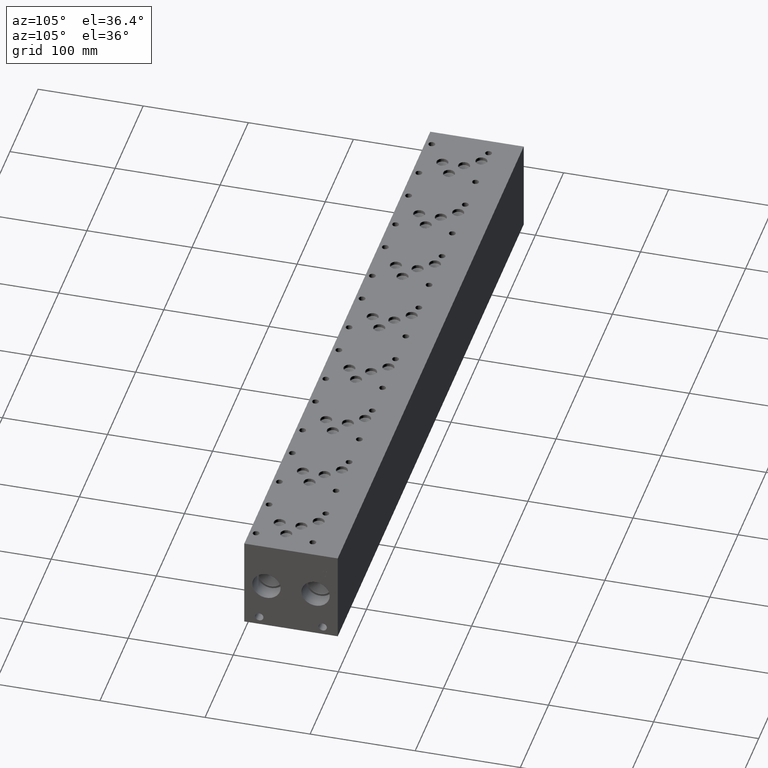
[diagram: clean part render]
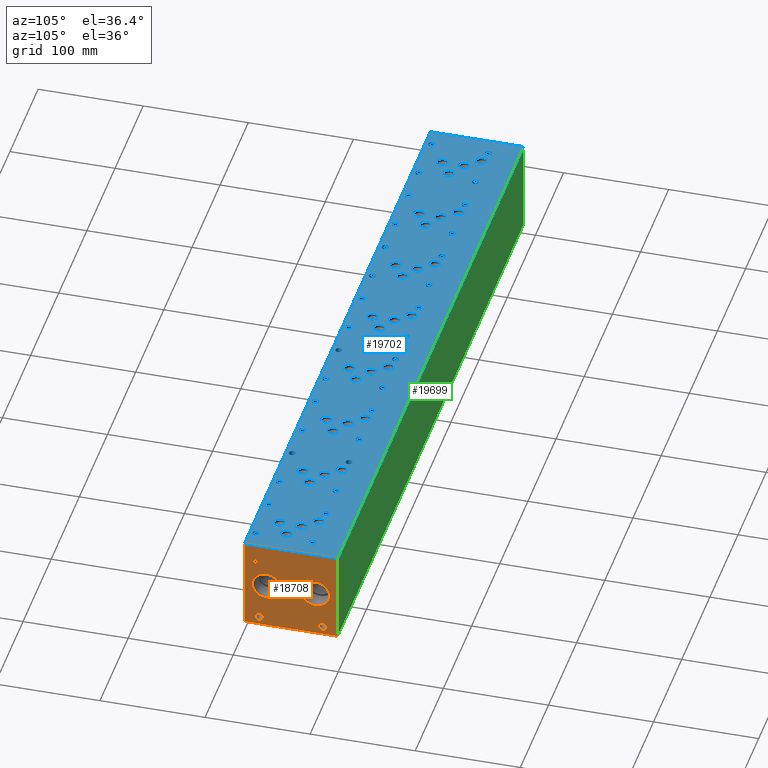
[diagram: same view with three faces highlighted in distinct colors, each labeled with its STEP entity id]
A machine part, auxiliary view with three faces highlighted in distinct colors.
Their STEP definitions:

[orange] entity #18708 — the highlighted planar face has unit normal (1, 0, 0).
#249=CIRCLE('',#19737,3.9624);
#250=CIRCLE('',#19738,3.9624);
#251=CIRCLE('',#19739,3.9624);
#252=CIRCLE('',#19740,3.9624);
#253=CIRCLE('',#19741,13.462);
#254=CIRCLE('',#19742,13.462);
#255=CIRCLE('',#19743,13.462);
#256=CIRCLE('',#19744,13.462);
#777=FACE_BOUND('',#2796,.T.);
#778=FACE_BOUND('',#2797,.T.);
#779=FACE_BOUND('',#2798,.T.);
#780=FACE_BOUND('',#2799,.T.);
#781=FACE_BOUND('',#2800,.T.);
#782=FACE_BOUND('',#2801,.T.);
#1007=B_SPLINE_CURVE_WITH_KNOTS('',2,(#25464,#25465,#25466,#25467),
 .UNSPECIFIED.,.F.,.F.,(3,1,3),(0.,1.,2.),.UNSPECIFIED.);
#1009=B_SPLINE_CURVE_WITH_KNOTS('',2,(#25485,#25486,#25487,#25488),
 .UNSPECIFIED.,.F.,.F.,(3,1,3),(0.,1.,2.),.UNSPECIFIED.);
#1011=B_SPLINE_CURVE_WITH_KNOTS('',2,(#25534,#25535,#25536,#25537),
 .UNSPECIFIED.,.F.,.F.,(3,1,3),(0.,1.,2.),.UNSPECIFIED.);
#1013=B_SPLINE_CURVE_WITH_KNOTS('',2,(#25552,#25553,#25554,#25555),
 .UNSPECIFIED.,.F.,.F.,(3,1,3),(0.,1.,2.),.UNSPECIFIED.);
#1772=FACE_OUTER_BOUND('',#2795,.T.);
#2795=EDGE_LOOP('',(#12146,#12147,#12148,#12149));
#2796=EDGE_LOOP('',(#12150,#12151,#12152,#12153,#12154,#12155,#12156,#12157));
#2797=EDGE_LOOP('',(#12158,#12159));
#2798=EDGE_LOOP('',(#12160,#12161));
#2799=EDGE_LOOP('',(#12162,#12163));
#2800=EDGE_LOOP('',(#12164,#12165));
#2801=EDGE_LOOP('',(#12166,#12167,#12168,#12169,#12170,#12171,#12172,#12173,
#12174));
#4013=LINE('',#25314,#5703);
#4017=LINE('',#25322,#5707);
#4020=LINE('',#25328,#5710);
#4023=LINE('',#25334,#5713);
#4026=LINE('',#25340,#5716);
#4029=LINE('',#25346,#5719);
#4032=LINE('',#25352,#5722);
#4035=LINE('',#25357,#5725);
#4053=LINE('',#25497,#5743);
#4056=LINE('',#25503,#5746);
#4059=LINE('',#25509,#5749);
#4062=LINE('',#25515,#5752);
#4065=LINE('',#25521,#5755);
#4069=LINE('',#25564,#5759);
#4070=LINE('',#25566,#5760);
#4071=LINE('',#25568,#5761);
#4072=LINE('',#25569,#5762);
#5703=VECTOR('',#21022,10.);
#5707=VECTOR('',#21028,10.);
#5710=VECTOR('',#21033,10.);
#5713=VECTOR('',#21038,10.);
#5716=VECTOR('',#21043,10.);
#5719=VECTOR('',#21048,10.);
#5722=VECTOR('',#21053,10.);
#5725=VECTOR('',#21058,10.);
#5743=VECTOR('',#21086,10.);
#5746=VECTOR('',#21091,10.);
#5749=VECTOR('',#21096,10.);
#5752=VECTOR('',#21101,10.);
#5755=VECTOR('',#21106,10.);
#5759=VECTOR('',#21114,10.);
#5760=VECTOR('',#21115,10.);
#5761=VECTOR('',#21116,10.);
#5762=VECTOR('',#21117,10.);
#7393=VERTEX_POINT('',#25312);
#7394=VERTEX_POINT('',#25313);
#7397=VERTEX_POINT('',#25321);
#7399=VERTEX_POINT('',#25327);
#7401=VERTEX_POINT('',#25333);
#7403=VERTEX_POINT('',#25339);
#7405=VERTEX_POINT('',#25345);
#7407=VERTEX_POINT('',#25351);
#7423=VERTEX_POINT('',#25462);
#7424=VERTEX_POINT('',#25463);
#7427=VERTEX_POINT('',#25484);
#7429=VERTEX_POINT('',#25496);
#7431=VERTEX_POINT('',#25502);
#7433=VERTEX_POINT('',#25508);
#7435=VERTEX_POINT('',#25514);
#7437=VERTEX_POINT('',#25520);
#7439=VERTEX_POINT('',#25533);
#7441=VERTEX_POINT('',#25562);
#7442=VERTEX_POINT('',#25563);
#7443=VERTEX_POINT('',#25565);
#7444=VERTEX_POINT('',#25567);
#7445=VERTEX_POINT('',#25570);
#7446=VERTEX_POINT('',#25571);
#7447=VERTEX_POINT('',#25574);
#7448=VERTEX_POINT('',#25575);
#7449=VERTEX_POINT('',#25578);
#7450=VERTEX_POINT('',#25579);
#7451=VERTEX_POINT('',#25582);
#7452=VERTEX_POINT('',#25583);
#9311=EDGE_CURVE('',#7393,#7394,#4013,.T.);
#9315=EDGE_CURVE('',#7397,#7393,#4017,.T.);
#9318=EDGE_CURVE('',#7399,#7397,#4020,.T.);
#9321=EDGE_CURVE('',#7401,#7399,#4023,.T.);
#9324=EDGE_CURVE('',#7403,#7401,#4026,.T.);
#9327=EDGE_CURVE('',#7405,#7403,#4029,.T.);
#9330=EDGE_CURVE('',#7407,#7405,#4032,.T.);
#9333=EDGE_CURVE('',#7394,#7407,#4035,.T.);
#9356=EDGE_CURVE('',#7423,#7424,#1007,.T.);
#9360=EDGE_CURVE('',#7427,#7423,#1009,.T.);
#9363=EDGE_CURVE('',#7429,#7427,#4053,.T.);
#9366=EDGE_CURVE('',#7431,#7429,#4056,.T.);
#9369=EDGE_CURVE('',#7433,#7431,#4059,.T.);
#9372=EDGE_CURVE('',#7435,#7433,#4062,.T.);
#9375=EDGE_CURVE('',#7437,#7435,#4065,.T.);
#9378=EDGE_CURVE('',#7439,#7437,#1011,.T.);
#9381=EDGE_CURVE('',#7424,#7439,#1013,.T.);
#9383=EDGE_CURVE('',#7441,#7442,#4069,.T.);
#9384=EDGE_CURVE('',#7442,#7443,#4070,.T.);
#9385=EDGE_CURVE('',#7444,#7443,#4071,.T.);
#9386=EDGE_CURVE('',#7441,#7444,#4072,.T.);
#9387=EDGE_CURVE('',#7445,#7446,#249,.T.);
#9388=EDGE_CURVE('',#7446,#7445,#250,.T.);
#9389=EDGE_CURVE('',#7447,#7448,#251,.T.);
#9390=EDGE_CURVE('',#7448,#7447,#252,.T.);
#9391=EDGE_CURVE('',#7449,#7450,#253,.T.);
#9392=EDGE_CURVE('',#7450,#7449,#254,.T.);
#9393=EDGE_CURVE('',#7451,#7452,#255,.T.);
#9394=EDGE_CURVE('',#7452,#7451,#256,.T.);
#12146=ORIENTED_EDGE('',*,*,#9383,.T.);
#12147=ORIENTED_EDGE('',*,*,#9384,.T.);
#12148=ORIENTED_EDGE('',*,*,#9385,.F.);
#12149=ORIENTED_EDGE('',*,*,#9386,.F.);
#12150=ORIENTED_EDGE('',*,*,#9311,.T.);
#12151=ORIENTED_EDGE('',*,*,#9333,.T.);
#12152=ORIENTED_EDGE('',*,*,#9330,.T.);
#12153=ORIENTED_EDGE('',*,*,#9327,.T.);
#12154=ORIENTED_EDGE('',*,*,#9324,.T.);
#12155=ORIENTED_EDGE('',*,*,#9321,.T.);
#12156=ORIENTED_EDGE('',*,*,#9318,.T.);
#12157=ORIENTED_EDGE('',*,*,#9315,.T.);
#12158=ORIENTED_EDGE('',*,*,#9387,.T.);
#12159=ORIENTED_EDGE('',*,*,#9388,.T.);
#12160=ORIENTED_EDGE('',*,*,#9389,.T.);
#12161=ORIENTED_EDGE('',*,*,#9390,.T.);
#12162=ORIENTED_EDGE('',*,*,#9391,.T.);
#12163=ORIENTED_EDGE('',*,*,#9392,.T.);
#12164=ORIENTED_EDGE('',*,*,#9393,.T.);
#12165=ORIENTED_EDGE('',*,*,#9394,.T.);
#12166=ORIENTED_EDGE('',*,*,#9356,.T.);
#12167=ORIENTED_EDGE('',*,*,#9381,.T.);
#12168=ORIENTED_EDGE('',*,*,#9378,.T.);
#12169=ORIENTED_EDGE('',*,*,#9375,.T.);
#12170=ORIENTED_EDGE('',*,*,#9372,.T.);
#12171=ORIENTED_EDGE('',*,*,#9369,.T.);
#12172=ORIENTED_EDGE('',*,*,#9366,.T.);
#12173=ORIENTED_EDGE('',*,*,#9363,.T.);
#12174=ORIENTED_EDGE('',*,*,#9360,.T.);
#17474=PLANE('',#19736);
#18708=ADVANCED_FACE('',(#1772,#777,#778,#779,#780,#781,#782),#17474,.T.);
#19736=AXIS2_PLACEMENT_3D('',#25561,#21112,#21113);
#19737=AXIS2_PLACEMENT_3D('',#25572,#21118,#21119);
#19738=AXIS2_PLACEMENT_3D('',#25573,#21120,#21121);
#19739=AXIS2_PLACEMENT_3D('',#25576,#21122,#21123);
#19740=AXIS2_PLACEMENT_3D('',#25577,#21124,#21125);
#19741=AXIS2_PLACEMENT_3D('',#25580,#21126,#21127);
#19742=AXIS2_PLACEMENT_3D('',#25581,#21128,#21129);
#19743=AXIS2_PLACEMENT_3D('',#25584,#21130,#21131);
#19744=AXIS2_PLACEMENT_3D('',#25585,#21132,#21133);
#21022=DIRECTION('',(0.,-1.,0.));
#21028=DIRECTION('',(0.,0.,-1.));
#21033=DIRECTION('',(0.,-1.,0.));
#21038=DIRECTION('',(0.,0.,-1.));
#21043=DIRECTION('',(0.,1.,0.));
#21048=DIRECTION('',(0.,0.,1.));
#21053=DIRECTION('',(0.,-1.,0.));
#21058=DIRECTION('',(0.,0.,1.));
#21086=DIRECTION('',(0.,1.,0.));
#21091=DIRECTION('',(0.,0.,1.));
#21096=DIRECTION('',(0.,-1.,0.));
#21101=DIRECTION('',(0.,0.,-1.));
#21106=DIRECTION('',(0.,-1.,0.));
#21112=DIRECTION('center_axis',(1.,0.,0.));
#21113=DIRECTION('ref_axis',(0.,1.,0.));
#21114=DIRECTION('',(0.,1.,0.));
#21115=DIRECTION('',(0.,0.,1.));
#21116=DIRECTION('',(0.,1.,0.));
#21117=DIRECTION('',(0.,0.,1.));
#21118=DIRECTION('center_axis',(-1.,0.,0.));
#21119=DIRECTION('ref_axis',(0.,1.,0.));
#21120=DIRECTION('center_axis',(-1.,0.,0.));
#21121=DIRECTION('ref_axis',(0.,1.,0.));
#21122=DIRECTION('center_axis',(-1.,0.,0.));
#21123=DIRECTION('ref_axis',(0.,1.,0.));
#21124=DIRECTION('center_axis',(-1.,0.,0.));
#21125=DIRECTION('ref_axis',(0.,1.,0.));
#21126=DIRECTION('center_axis',(-1.,0.,0.));
#21127=DIRECTION('ref_axis',(0.,1.,0.));
#21128=DIRECTION('center_axis',(-1.,0.,0.));
#21129=DIRECTION('ref_axis',(0.,1.,0.));
#21130=DIRECTION('center_axis',(-1.,0.,0.));
#21131=DIRECTION('ref_axis',(0.,1.,0.));
#21132=DIRECTION('center_axis',(-1.,0.,0.));
#21133=DIRECTION('ref_axis',(0.,1.,0.));
#25312=CARTESIAN_POINT('',(660.4,77.137165271453,66.04));
#25313=CARTESIAN_POINT('',(660.4,76.2932430799135,66.04));
#25314=CARTESIAN_POINT('',(660.4,38.5685826357265,66.04));
#25321=CARTESIAN_POINT('',(660.4,77.137165271453,71.6387033194816));
#25322=CARTESIAN_POINT('',(660.4,77.137165271453,35.8193516597408));
#25327=CARTESIAN_POINT('',(660.4,79.2675542183881,71.6387033194816));
#25328=CARTESIAN_POINT('',(660.4,39.633777109194,71.6387033194816));
#25333=CARTESIAN_POINT('',(660.4,79.2675542183881,72.3899999046326));
#25334=CARTESIAN_POINT('',(660.4,79.2675542183881,36.1949999523163));
#25339=CARTESIAN_POINT('',(660.4,74.1628541329784,72.3899999046326));
#25340=CARTESIAN_POINT('',(660.4,37.0814270664892,72.3899999046326));
#25345=CARTESIAN_POINT('',(660.4,74.1628541329784,71.6387033194816));
#25346=CARTESIAN_POINT('',(660.4,74.1628541329784,35.8193516597408));
#25351=CARTESIAN_POINT('',(660.4,76.2932430799135,71.6387033194816));
#25352=CARTESIAN_POINT('',(660.4,38.1466215399568,71.6387033194816));
#25357=CARTESIAN_POINT('',(660.4,76.2932430799135,33.02));
#25462=CARTESIAN_POINT('',(660.4,12.2825672023594,71.9937681439707));
#25463=CARTESIAN_POINT('',(660.4,13.039009654532,70.475737372604));
#25464=CARTESIAN_POINT('Ctrl Pts',(660.4,12.2825672023594,71.9937681439707));
#25465=CARTESIAN_POINT('Ctrl Pts',(660.4,12.6376320268486,71.7519123939564));
#25466=CARTESIAN_POINT('Ctrl Pts',(660.4,13.039009654532,71.0057616758269));
#25467=CARTESIAN_POINT('Ctrl Pts',(660.4,13.039009654532,70.475737372604));
#25484=CARTESIAN_POINT('',(660.4,10.6204521543883,72.3899999046326));
#25485=CARTESIAN_POINT('Ctrl Pts',(660.4,10.6204521543883,72.3899999046326));
#25486=CARTESIAN_POINT('Ctrl Pts',(660.4,11.1864975267624,72.3899999046326));
#25487=CARTESIAN_POINT('Ctrl Pts',(660.4,11.978961048086,72.2047486918556));
#25488=CARTESIAN_POINT('Ctrl Pts',(660.4,12.2825672023594,71.9937681439707));
#25496=CARTESIAN_POINT('',(660.4,9.02523337769779,72.3899999046326));
#25497=CARTESIAN_POINT('',(660.4,4.51261668884889,72.3899999046326));
#25502=CARTESIAN_POINT('',(660.4,9.02523337769779,66.04));
#25503=CARTESIAN_POINT('',(660.4,9.02523337769779,33.02));
#25508=CARTESIAN_POINT('',(660.4,9.86915556923729,66.04));
#25509=CARTESIAN_POINT('',(660.4,4.93457778461864,66.04));
#25514=CARTESIAN_POINT('',(660.4,9.86915556923729,68.4070988299279));
#25515=CARTESIAN_POINT('',(660.4,9.86915556923729,34.2035494149639));
#25520=CARTESIAN_POINT('',(660.4,10.5844310852372,68.4070988299279));
#25521=CARTESIAN_POINT('',(660.4,5.29221554261861,68.4070988299279));
#25533=CARTESIAN_POINT('',(660.4,12.4832560162011,69.0657698086904));
#25534=CARTESIAN_POINT('Ctrl Pts',(660.4,12.4832560162011,69.0657698086904));
#25535=CARTESIAN_POINT('Ctrl Pts',(660.4,12.1539205268198,68.7415801863307));
#25536=CARTESIAN_POINT('Ctrl Pts',(660.4,11.2636855320861,68.4070988299279));
#25537=CARTESIAN_POINT('Ctrl Pts',(660.4,10.5844310852372,68.4070988299279));
#25552=CARTESIAN_POINT('Ctrl Pts',(660.4,13.039009654532,70.475737372604));
#25553=CARTESIAN_POINT('Ctrl Pts',(660.4,13.039009654532,70.0640680108774));
#25554=CARTESIAN_POINT('Ctrl Pts',(660.4,12.7456952343018,69.3230631597695));
#25555=CARTESIAN_POINT('Ctrl Pts',(660.4,12.4832560162011,69.0657698086904));
#25561=CARTESIAN_POINT('Origin',(660.4,0.,0.));
#25562=CARTESIAN_POINT('',(660.4,0.,0.));
#25563=CARTESIAN_POINT('',(660.4,88.9,0.));
#25564=CARTESIAN_POINT('',(660.4,0.,0.));
#25565=CARTESIAN_POINT('',(660.4,88.9,88.9));
#25566=CARTESIAN_POINT('',(660.4,88.9,0.));
#25567=CARTESIAN_POINT('',(660.4,0.,88.9));
#25568=CARTESIAN_POINT('',(660.4,0.,88.9));
#25569=CARTESIAN_POINT('',(660.4,0.,0.));
#25570=CARTESIAN_POINT('',(660.4,78.5876,7.9248));
#25571=CARTESIAN_POINT('',(660.4,70.6628,7.9248));
#25572=CARTESIAN_POINT('Origin',(660.4,74.6252,7.9248));
#25573=CARTESIAN_POINT('Origin',(660.4,74.6252,7.9248));
#25574=CARTESIAN_POINT('',(660.4,18.2372,7.9248));
#25575=CARTESIAN_POINT('',(660.4,10.3124,7.9248));
#25576=CARTESIAN_POINT('Origin',(660.4,14.2748,7.9248));
#25577=CARTESIAN_POINT('Origin',(660.4,14.2748,7.9248));
#25578=CARTESIAN_POINT('',(660.4,81.28,44.45));
#25579=CARTESIAN_POINT('',(660.4,54.356,44.45));
#25580=CARTESIAN_POINT('Origin',(660.4,67.818,44.45));
#25581=CARTESIAN_POINT('Origin',(660.4,67.818,44.45));
#25582=CARTESIAN_POINT('',(660.4,34.544,44.45));
#25583=CARTESIAN_POINT('',(660.4,7.62,44.45));
#25584=CARTESIAN_POINT('Origin',(660.4,21.082,44.45));
#25585=CARTESIAN_POINT('Origin',(660.4,21.082,44.45));

[blue] entity #19702 — the highlighted planar face has unit normal (0, 0, 1).
#429=CIRCLE('',#20476,3.175);
#430=CIRCLE('',#20477,3.175);
#436=CIRCLE('',#20487,3.175);
#437=CIRCLE('',#20488,3.175);
#443=CIRCLE('',#20498,3.175);
#444=CIRCLE('',#20499,3.175);
#450=CIRCLE('',#20509,3.175);
#451=CIRCLE('',#20510,3.175);
#457=CIRCLE('',#20520,3.175);
#458=CIRCLE('',#20521,3.175);
#464=CIRCLE('',#20531,3.175);
#465=CIRCLE('',#20532,3.175);
#471=CIRCLE('',#20542,3.175);
#472=CIRCLE('',#20543,3.175);
#478=CIRCLE('',#20553,3.175);
#479=CIRCLE('',#20554,3.175);
#485=CIRCLE('',#20564,3.175);
#486=CIRCLE('',#20565,3.175);
#492=CIRCLE('',#20575,3.175);
#493=CIRCLE('',#20576,3.175);
#499=CIRCLE('',#20586,3.175);
#500=CIRCLE('',#20587,3.175);
#506=CIRCLE('',#20597,3.175);
#507=CIRCLE('',#20598,3.175);
#513=CIRCLE('',#20608,3.175);
#514=CIRCLE('',#20609,3.175);
#520=CIRCLE('',#20619,3.175);
#521=CIRCLE('',#20620,3.175);
#527=CIRCLE('',#20630,3.175);
#528=CIRCLE('',#20631,3.175);
#534=CIRCLE('',#20641,3.175);
#535=CIRCLE('',#20642,3.175);
#541=CIRCLE('',#20652,3.175);
#542=CIRCLE('',#20653,3.175);
#548=CIRCLE('',#20663,3.175);
#549=CIRCLE('',#20664,3.175);
#555=CIRCLE('',#20674,3.175);
#556=CIRCLE('',#20675,3.175);
#562=CIRCLE('',#20685,3.175);
#563=CIRCLE('',#20686,3.175);
#569=CIRCLE('',#20696,3.175);
#570=CIRCLE('',#20697,3.175);
#576=CIRCLE('',#20707,3.175);
#577=CIRCLE('',#20708,3.175);
#583=CIRCLE('',#20718,3.175);
#584=CIRCLE('',#20719,3.175);
#590=CIRCLE('',#20729,3.175);
#591=CIRCLE('',#20730,3.175);
#597=CIRCLE('',#20740,3.175);
#598=CIRCLE('',#20741,3.175);
#604=CIRCLE('',#20751,3.175);
#605=CIRCLE('',#20752,3.175);
#611=CIRCLE('',#20762,3.175);
#612=CIRCLE('',#20763,3.175);
#618=CIRCLE('',#20773,3.175);
#619=CIRCLE('',#20774,3.175);
#622=CIRCLE('',#20780,5.5626);
#623=CIRCLE('',#20781,5.5626);
#626=CIRCLE('',#20786,5.5626);
#627=CIRCLE('',#20787,5.5626);
#630=CIRCLE('',#20792,5.5626);
#631=CIRCLE('',#20793,5.5626);
#634=CIRCLE('',#20798,5.5626);
#635=CIRCLE('',#20799,5.5626);
#638=CIRCLE('',#20804,5.5626);
#639=CIRCLE('',#20805,5.5626);
#642=CIRCLE('',#20810,5.5626);
#643=CIRCLE('',#20811,5.5626);
#646=CIRCLE('',#20816,5.5626);
#647=CIRCLE('',#20817,5.5626);
#650=CIRCLE('',#20822,5.5626);
#651=CIRCLE('',#20823,5.5626);
#654=CIRCLE('',#20828,5.5626);
#655=CIRCLE('',#20829,5.5626);
#658=CIRCLE('',#20834,5.5626);
#659=CIRCLE('',#20835,5.5626);
#662=CIRCLE('',#20840,5.5626);
#663=CIRCLE('',#20841,5.5626);
#666=CIRCLE('',#20846,5.5626);
#667=CIRCLE('',#20847,5.5626);
#670=CIRCLE('',#20852,5.5626);
#671=CIRCLE('',#20853,5.5626);
#674=CIRCLE('',#20858,5.5626);
#675=CIRCLE('',#20859,5.5626);
#678=CIRCLE('',#20864,5.5626);
#679=CIRCLE('',#20865,5.5626);
#682=CIRCLE('',#20870,5.5626);
#683=CIRCLE('',#20871,5.5626);
#686=CIRCLE('',#20876,5.5626);
#687=CIRCLE('',#20877,5.5626);
#690=CIRCLE('',#20882,5.5626);
#691=CIRCLE('',#20883,5.5626);
#694=CIRCLE('',#20888,5.5626);
#695=CIRCLE('',#20889,5.5626);
#698=CIRCLE('',#20894,5.5626);
#699=CIRCLE('',#20895,5.5626);
#702=CIRCLE('',#20900,5.5626);
#703=CIRCLE('',#20901,5.5626);
#706=CIRCLE('',#20906,5.5626);
#707=CIRCLE('',#20907,5.5626);
#710=CIRCLE('',#20912,5.5626);
#711=CIRCLE('',#20913,5.5626);
#714=CIRCLE('',#20918,5.5626);
#715=CIRCLE('',#20919,5.5626);
#718=CIRCLE('',#20924,5.5626);
#719=CIRCLE('',#20925,5.5626);
#722=CIRCLE('',#20930,5.5626);
#723=CIRCLE('',#20931,5.5626);
#726=CIRCLE('',#20936,5.5626);
#727=CIRCLE('',#20937,5.5626);
#730=CIRCLE('',#20942,5.5626);
#731=CIRCLE('',#20943,5.5626);
#734=CIRCLE('',#20948,5.5626);
#735=CIRCLE('',#20949,5.5626);
#738=CIRCLE('',#20954,5.5626);
#739=CIRCLE('',#20955,5.5626);
#742=CIRCLE('',#20960,5.5626);
#743=CIRCLE('',#20961,5.5626);
#746=CIRCLE('',#20966,5.5626);
#747=CIRCLE('',#20967,5.5626);
#753=CIRCLE('',#20976,3.175);
#754=CIRCLE('',#20977,3.175);
#760=CIRCLE('',#20987,3.175);
#761=CIRCLE('',#20988,3.175);
#767=CIRCLE('',#20998,3.175);
#768=CIRCLE('',#20999,3.175);
#774=CIRCLE('',#21009,3.175);
#775=CIRCLE('',#21010,3.175);
#935=FACE_BOUND('',#3948,.T.);
#936=FACE_BOUND('',#3949,.T.);
#937=FACE_BOUND('',#3950,.T.);
#938=FACE_BOUND('',#3951,.T.);
#939=FACE_BOUND('',#3952,.T.);
#940=FACE_BOUND('',#3953,.T.);
#941=FACE_BOUND('',#3954,.T.);
#942=FACE_BOUND('',#3955,.T.);
#943=FACE_BOUND('',#3956,.T.);
#944=FACE_BOUND('',#3957,.T.);
#945=FACE_BOUND('',#3958,.T.);
#946=FACE_BOUND('',#3959,.T.);
#947=FACE_BOUND('',#3960,.T.);
#948=FACE_BOUND('',#3961,.T.);
#949=FACE_BOUND('',#3962,.T.);
#950=FACE_BOUND('',#3963,.T.);
#951=FACE_BOUND('',#3964,.T.);
#952=FACE_BOUND('',#3965,.T.);
#953=FACE_BOUND('',#3966,.T.);
#954=FACE_BOUND('',#3967,.T.);
#955=FACE_BOUND('',#3968,.T.);
#956=FACE_BOUND('',#3969,.T.);
#957=FACE_BOUND('',#3970,.T.);
#958=FACE_BOUND('',#3971,.T.);
#959=FACE_BOUND('',#3972,.T.);
#960=FACE_BOUND('',#3973,.T.);
#961=FACE_BOUND('',#3974,.T.);
#962=FACE_BOUND('',#3975,.T.);
#963=FACE_BOUND('',#3976,.T.);
#964=FACE_BOUND('',#3977,.T.);
#965=FACE_BOUND('',#3978,.T.);
#966=FACE_BOUND('',#3979,.T.);
#967=FACE_BOUND('',#3980,.T.);
#968=FACE_BOUND('',#3981,.T.);
#969=FACE_BOUND('',#3982,.T.);
#970=FACE_BOUND('',#3983,.T.);
#971=FACE_BOUND('',#3984,.T.);
#972=FACE_BOUND('',#3985,.T.);
#973=FACE_BOUND('',#3986,.T.);
#974=FACE_BOUND('',#3987,.T.);
#975=FACE_BOUND('',#3988,.T.);
#976=FACE_BOUND('',#3989,.T.);
#977=FACE_BOUND('',#3990,.T.);
#978=FACE_BOUND('',#3991,.T.);
#979=FACE_BOUND('',#3992,.T.);
#980=FACE_BOUND('',#3993,.T.);
#981=FACE_BOUND('',#3994,.T.);
#982=FACE_BOUND('',#3995,.T.);
#983=FACE_BOUND('',#3996,.T.);
#984=FACE_BOUND('',#3997,.T.);
#985=FACE_BOUND('',#3998,.T.);
#986=FACE_BOUND('',#3999,.T.);
#987=FACE_BOUND('',#4000,.T.);
#988=FACE_BOUND('',#4001,.T.);
#989=FACE_BOUND('',#4002,.T.);
#990=FACE_BOUND('',#4003,.T.);
#991=FACE_BOUND('',#4004,.T.);
#992=FACE_BOUND('',#4005,.T.);
#993=FACE_BOUND('',#4006,.T.);
#994=FACE_BOUND('',#4007,.T.);
#995=FACE_BOUND('',#4008,.T.);
#996=FACE_BOUND('',#4009,.T.);
#997=FACE_BOUND('',#4010,.T.);
#998=FACE_BOUND('',#4011,.T.);
#2766=FACE_OUTER_BOUND('',#3947,.T.);
#3947=EDGE_LOOP('',(#17320,#17321,#17322,#17323));
#3948=EDGE_LOOP('',(#17324,#17325));
#3949=EDGE_LOOP('',(#17326,#17327));
#3950=EDGE_LOOP('',(#17328,#17329));
#3951=EDGE_LOOP('',(#17330,#17331));
#3952=EDGE_LOOP('',(#17332,#17333));
#3953=EDGE_LOOP('',(#17334,#17335));
#3954=EDGE_LOOP('',(#17336,#17337));
#3955=EDGE_LOOP('',(#17338,#17339));
#3956=EDGE_LOOP('',(#17340,#17341));
#3957=EDGE_LOOP('',(#17342,#17343));
#3958=EDGE_LOOP('',(#17344,#17345));
#3959=EDGE_LOOP('',(#17346,#17347));
#3960=EDGE_LOOP('',(#17348,#17349));
#3961=EDGE_LOOP('',(#17350,#17351));
#3962=EDGE_LOOP('',(#17352,#17353));
#3963=EDGE_LOOP('',(#17354,#17355));
#3964=EDGE_LOOP('',(#17356,#17357));
#3965=EDGE_LOOP('',(#17358,#17359));
#3966=EDGE_LOOP('',(#17360,#17361));
#3967=EDGE_LOOP('',(#17362,#17363));
#3968=EDGE_LOOP('',(#17364,#17365));
#3969=EDGE_LOOP('',(#17366,#17367));
#3970=EDGE_LOOP('',(#17368,#17369));
#3971=EDGE_LOOP('',(#17370,#17371));
#3972=EDGE_LOOP('',(#17372,#17373));
#3973=EDGE_LOOP('',(#17374,#17375));
#3974=EDGE_LOOP('',(#17376,#17377));
#3975=EDGE_LOOP('',(#17378,#17379));
#3976=EDGE_LOOP('',(#17380,#17381));
#3977=EDGE_LOOP('',(#17382,#17383));
#3978=EDGE_LOOP('',(#17384,#17385));
#3979=EDGE_LOOP('',(#17386,#17387));
#3980=EDGE_LOOP('',(#17388,#17389));
#3981=EDGE_LOOP('',(#17390,#17391));
#3982=EDGE_LOOP('',(#17392,#17393));
#3983=EDGE_LOOP('',(#17394,#17395));
#3984=EDGE_LOOP('',(#17396,#17397));
#3985=EDGE_LOOP('',(#17398,#17399));
#3986=EDGE_LOOP('',(#17400,#17401));
#3987=EDGE_LOOP('',(#17402,#17403));
#3988=EDGE_LOOP('',(#17404,#17405));
#3989=EDGE_LOOP('',(#17406,#17407));
#3990=EDGE_LOOP('',(#17408,#17409));
#3991=EDGE_LOOP('',(#17410,#17411));
#3992=EDGE_LOOP('',(#17412,#17413));
#3993=EDGE_LOOP('',(#17414,#17415));
#3994=EDGE_LOOP('',(#17416,#17417));
#3995=EDGE_LOOP('',(#17418,#17419));
#3996=EDGE_LOOP('',(#17420,#17421));
#3997=EDGE_LOOP('',(#17422,#17423));
#3998=EDGE_LOOP('',(#17424,#17425));
#3999=EDGE_LOOP('',(#17426,#17427));
#4000=EDGE_LOOP('',(#17428,#17429));
#4001=EDGE_LOOP('',(#17430,#17431));
#4002=EDGE_LOOP('',(#17432,#17433));
#4003=EDGE_LOOP('',(#17434,#17435));
#4004=EDGE_LOOP('',(#17436,#17437));
#4005=EDGE_LOOP('',(#17438,#17439));
#4006=EDGE_LOOP('',(#17440,#17441));
#4007=EDGE_LOOP('',(#17442,#17443));
#4008=EDGE_LOOP('',(#17444,#17445));
#4009=EDGE_LOOP('',(#17446,#17447));
#4010=EDGE_LOOP('',(#17448,#17449));
#4011=EDGE_LOOP('',(#17450,#17451));
#4071=LINE('',#25568,#5761);
#4131=LINE('',#25843,#5821);
#4404=LINE('',#28095,#6094);
#5702=LINE('',#34198,#7392);
#5761=VECTOR('',#21116,10.);
#5821=VECTOR('',#21230,10.);
#6094=VECTOR('',#21653,10.);
#7392=VECTOR('',#25301,10.);
#7443=VERTEX_POINT('',#25565);
#7444=VERTEX_POINT('',#25567);
#7503=VERTEX_POINT('',#25840);
#7504=VERTEX_POINT('',#25842);
#8901=VERTEX_POINT('',#33090);
#8902=VERTEX_POINT('',#33091);
#8909=VERTEX_POINT('',#33112);
#8910=VERTEX_POINT('',#33113);
#8917=VERTEX_POINT('',#33134);
#8918=VERTEX_POINT('',#33135);
#8925=VERTEX_POINT('',#33156);
#8926=VERTEX_POINT('',#33157);
#8933=VERTEX_POINT('',#33178);
#8934=VERTEX_POINT('',#33179);
#8941=VERTEX_POINT('',#33200);
#8942=VERTEX_POINT('',#33201);
#8949=VERTEX_POINT('',#33222);
#8950=VERTEX_POINT('',#33223);
#8957=VERTEX_POINT('',#33244);
#8958=VERTEX_POINT('',#33245);
#8965=VERTEX_POINT('',#33266);
#8966=VERTEX_POINT('',#33267);
#8973=VERTEX_POINT('',#33288);
#8974=VERTEX_POINT('',#33289);
#8981=VERTEX_POINT('',#33310);
#8982=VERTEX_POINT('',#33311);
#8989=VERTEX_POINT('',#33332);
#8990=VERTEX_POINT('',#33333);
#8997=VERTEX_POINT('',#33354);
#8998=VERTEX_POINT('',#33355);
#9005=VERTEX_POINT('',#33376);
#9006=VERTEX_POINT('',#33377);
#9013=VERTEX_POINT('',#33398);
#9014=VERTEX_POINT('',#33399);
#9021=VERTEX_POINT('',#33420);
#9022=VERTEX_POINT('',#33421);
#9029=VERTEX_POINT('',#33442);
#9030=VERTEX_POINT('',#33443);
#9037=VERTEX_POINT('',#33464);
#9038=VERTEX_POINT('',#33465);
#9045=VERTEX_POINT('',#33486);
#9046=VERTEX_POINT('',#33487);
#9053=VERTEX_POINT('',#33508);
#9054=VERTEX_POINT('',#33509);
#9061=VERTEX_POINT('',#33530);
#9062=VERTEX_POINT('',#33531);
#9069=VERTEX_POINT('',#33552);
#9070=VERTEX_POINT('',#33553);
#9077=VERTEX_POINT('',#33574);
#9078=VERTEX_POINT('',#33575);
#9085=VERTEX_POINT('',#33596);
#9086=VERTEX_POINT('',#33597);
#9093=VERTEX_POINT('',#33618);
#9094=VERTEX_POINT('',#33619);
#9101=VERTEX_POINT('',#33640);
#9102=VERTEX_POINT('',#33641);
#9109=VERTEX_POINT('',#33662);
#9110=VERTEX_POINT('',#33663);
#9117=VERTEX_POINT('',#33684);
#9118=VERTEX_POINT('',#33685);
#9122=VERTEX_POINT('',#33699);
#9123=VERTEX_POINT('',#33700);
#9127=VERTEX_POINT('',#33712);
#9128=VERTEX_POINT('',#33713);
#9132=VERTEX_POINT('',#33725);
#9133=VERTEX_POINT('',#33726);
#9137=VERTEX_POINT('',#33738);
#9138=VERTEX_POINT('',#33739);
#9142=VERTEX_POINT('',#33751);
#9143=VERTEX_POINT('',#33752);
#9147=VERTEX_POINT('',#33764);
#9148=VERTEX_POINT('',#33765);
#9152=VERTEX_POINT('',#33777);
#9153=VERTEX_POINT('',#33778);
#9157=VERTEX_POINT('',#33790);
#9158=VERTEX_POINT('',#33791);
#9162=VERTEX_POINT('',#33803);
#9163=VERTEX_POINT('',#33804);
#9167=VERTEX_POINT('',#33816);
#9168=VERTEX_POINT('',#33817);
#9172=VERTEX_POINT('',#33829);
#9173=VERTEX_POINT('',#33830);
#9177=VERTEX_POINT('',#33842);
#9178=VERTEX_POINT('',#33843);
#9182=VERTEX_POINT('',#33855);
#9183=VERTEX_POINT('',#33856);
#9187=VERTEX_POINT('',#33868);
#9188=VERTEX_POINT('',#33869);
#9192=VERTEX_POINT('',#33881);
#9193=VERTEX_POINT('',#33882);
#9197=VERTEX_POINT('',#33894);
#9198=VERTEX_POINT('',#33895);
#9202=VERTEX_POINT('',#33907);
#9203=VERTEX_POINT('',#33908);
#9207=VERTEX_POINT('',#33920);
#9208=VERTEX_POINT('',#33921);
#9212=VERTEX_POINT('',#33933);
#9213=VERTEX_POINT('',#33934);
#9217=VERTEX_POINT('',#33946);
#9218=VERTEX_POINT('',#33947);
#9222=VERTEX_POINT('',#33959);
#9223=VERTEX_POINT('',#33960);
#9227=VERTEX_POINT('',#33972);
#9228=VERTEX_POINT('',#33973);
#9232=VERTEX_POINT('',#33985);
#9233=VERTEX_POINT('',#33986);
#9237=VERTEX_POINT('',#33998);
#9238=VERTEX_POINT('',#33999);
#9242=VERTEX_POINT('',#34011);
#9243=VERTEX_POINT('',#34012);
#9247=VERTEX_POINT('',#34024);
#9248=VERTEX_POINT('',#34025);
#9252=VERTEX_POINT('',#34037);
#9253=VERTEX_POINT('',#34038);
#9257=VERTEX_POINT('',#34050);
#9258=VERTEX_POINT('',#34051);
#9262=VERTEX_POINT('',#34063);
#9263=VERTEX_POINT('',#34064);
#9267=VERTEX_POINT('',#34076);
#9268=VERTEX_POINT('',#34077);
#9272=VERTEX_POINT('',#34089);
#9273=VERTEX_POINT('',#34090);
#9277=VERTEX_POINT('',#34102);
#9278=VERTEX_POINT('',#34103);
#9285=VERTEX_POINT('',#34122);
#9286=VERTEX_POINT('',#34123);
#9293=VERTEX_POINT('',#34144);
#9294=VERTEX_POINT('',#34145);
#9301=VERTEX_POINT('',#34166);
#9302=VERTEX_POINT('',#34167);
#9309=VERTEX_POINT('',#34188);
#9310=VERTEX_POINT('',#34189);
#9385=EDGE_CURVE('',#7444,#7443,#4071,.T.);
#9469=EDGE_CURVE('',#7504,#7503,#4131,.T.);
#9948=EDGE_CURVE('',#7503,#7444,#4404,.T.);
#11518=EDGE_CURVE('',#8901,#8902,#429,.T.);
#11519=EDGE_CURVE('',#8902,#8901,#430,.T.);
#11528=EDGE_CURVE('',#8909,#8910,#436,.T.);
#11529=EDGE_CURVE('',#8910,#8909,#437,.T.);
#11538=EDGE_CURVE('',#8917,#8918,#443,.T.);
#11539=EDGE_CURVE('',#8918,#8917,#444,.T.);
#11548=EDGE_CURVE('',#8925,#8926,#450,.T.);
#11549=EDGE_CURVE('',#8926,#8925,#451,.T.);
#11558=EDGE_CURVE('',#8933,#8934,#457,.T.);
#11559=EDGE_CURVE('',#8934,#8933,#458,.T.);
#11568=EDGE_CURVE('',#8941,#8942,#464,.T.);
#11569=EDGE_CURVE('',#8942,#8941,#465,.T.);
#11578=EDGE_CURVE('',#8949,#8950,#471,.T.);
#11579=EDGE_CURVE('',#8950,#8949,#472,.T.);
#11588=EDGE_CURVE('',#8957,#8958,#478,.T.);
#11589=EDGE_CURVE('',#8958,#8957,#479,.T.);
#11598=EDGE_CURVE('',#8965,#8966,#485,.T.);
#11599=EDGE_CURVE('',#8966,#8965,#486,.T.);
#11608=EDGE_CURVE('',#8973,#8974,#492,.T.);
#11609=EDGE_CURVE('',#8974,#8973,#493,.T.);
#11618=EDGE_CURVE('',#8981,#8982,#499,.T.);
#11619=EDGE_CURVE('',#8982,#8981,#500,.T.);
#11628=EDGE_CURVE('',#8989,#8990,#506,.T.);
#11629=EDGE_CURVE('',#8990,#8989,#507,.T.);
#11638=EDGE_CURVE('',#8997,#8998,#513,.T.);
#11639=EDGE_CURVE('',#8998,#8997,#514,.T.);
#11648=EDGE_CURVE('',#9005,#9006,#520,.T.);
#11649=EDGE_CURVE('',#9006,#9005,#521,.T.);
#11658=EDGE_CURVE('',#9013,#9014,#527,.T.);
#11659=EDGE_CURVE('',#9014,#9013,#528,.T.);
#11668=EDGE_CURVE('',#9021,#9022,#534,.T.);
#11669=EDGE_CURVE('',#9022,#9021,#535,.T.);
#11678=EDGE_CURVE('',#9029,#9030,#541,.T.);
#11679=EDGE_CURVE('',#9030,#9029,#542,.T.);
#11688=EDGE_CURVE('',#9037,#9038,#548,.T.);
#11689=EDGE_CURVE('',#9038,#9037,#549,.T.);
#11698=EDGE_CURVE('',#9045,#9046,#555,.T.);
#11699=EDGE_CURVE('',#9046,#9045,#556,.T.);
#11708=EDGE_CURVE('',#9053,#9054,#562,.T.);
#11709=EDGE_CURVE('',#9054,#9053,#563,.T.);
#11718=EDGE_CURVE('',#9061,#9062,#569,.T.);
#11719=EDGE_CURVE('',#9062,#9061,#570,.T.);
#11728=EDGE_CURVE('',#9069,#9070,#576,.T.);
#11729=EDGE_CURVE('',#9070,#9069,#577,.T.);
#11738=EDGE_CURVE('',#9077,#9078,#583,.T.);
#11739=EDGE_CURVE('',#9078,#9077,#584,.T.);
#11748=EDGE_CURVE('',#9085,#9086,#590,.T.);
#11749=EDGE_CURVE('',#9086,#9085,#591,.T.);
#11758=EDGE_CURVE('',#9093,#9094,#597,.T.);
#11759=EDGE_CURVE('',#9094,#9093,#598,.T.);
#11768=EDGE_CURVE('',#9101,#9102,#604,.T.);
#11769=EDGE_CURVE('',#9102,#9101,#605,.T.);
#11778=EDGE_CURVE('',#9109,#9110,#611,.T.);
#11779=EDGE_CURVE('',#9110,#9109,#612,.T.);
#11788=EDGE_CURVE('',#9117,#9118,#618,.T.);
#11789=EDGE_CURVE('',#9118,#9117,#619,.T.);
#11795=EDGE_CURVE('',#9122,#9123,#622,.T.);
#11796=EDGE_CURVE('',#9123,#9122,#623,.T.);
#11801=EDGE_CURVE('',#9127,#9128,#626,.T.);
#11802=EDGE_CURVE('',#9128,#9127,#627,.T.);
#11807=EDGE_CURVE('',#9132,#9133,#630,.T.);
#11808=EDGE_CURVE('',#9133,#9132,#631,.T.);
#11813=EDGE_CURVE('',#9137,#9138,#634,.T.);
#11814=EDGE_CURVE('',#9138,#9137,#635,.T.);
#11819=EDGE_CURVE('',#9142,#9143,#638,.T.);
#11820=EDGE_CURVE('',#9143,#9142,#639,.T.);
#11825=EDGE_CURVE('',#9147,#9148,#642,.T.);
#11826=EDGE_CURVE('',#9148,#9147,#643,.T.);
#11831=EDGE_CURVE('',#9152,#9153,#646,.T.);
#11832=EDGE_CURVE('',#9153,#9152,#647,.T.);
#11837=EDGE_CURVE('',#9157,#9158,#650,.T.);
#11838=EDGE_CURVE('',#9158,#9157,#651,.T.);
#11843=EDGE_CURVE('',#9162,#9163,#654,.T.);
#11844=EDGE_CURVE('',#9163,#9162,#655,.T.);
#11849=EDGE_CURVE('',#9167,#9168,#658,.T.);
#11850=EDGE_CURVE('',#9168,#9167,#659,.T.);
#11855=EDGE_CURVE('',#9172,#9173,#662,.T.);
#11856=EDGE_CURVE('',#9173,#9172,#663,.T.);
#11861=EDGE_CURVE('',#9177,#9178,#666,.T.);
#11862=EDGE_CURVE('',#9178,#9177,#667,.T.);
#11867=EDGE_CURVE('',#9182,#9183,#670,.T.);
#11868=EDGE_CURVE('',#9183,#9182,#671,.T.);
#11873=EDGE_CURVE('',#9187,#9188,#674,.T.);
#11874=EDGE_CURVE('',#9188,#9187,#675,.T.);
#11879=EDGE_CURVE('',#9192,#9193,#678,.T.);
#11880=EDGE_CURVE('',#9193,#9192,#679,.T.);
#11885=EDGE_CURVE('',#9197,#9198,#682,.T.);
#11886=EDGE_CURVE('',#9198,#9197,#683,.T.);
#11891=EDGE_CURVE('',#9202,#9203,#686,.T.);
#11892=EDGE_CURVE('',#9203,#9202,#687,.T.);
#11897=EDGE_CURVE('',#9207,#9208,#690,.T.);
#11898=EDGE_CURVE('',#9208,#9207,#691,.T.);
#11903=EDGE_CURVE('',#9212,#9213,#694,.T.);
#11904=EDGE_CURVE('',#9213,#9212,#695,.T.);
#11909=EDGE_CURVE('',#9217,#9218,#698,.T.);
#11910=EDGE_CURVE('',#9218,#9217,#699,.T.);
#11915=EDGE_CURVE('',#9222,#9223,#702,.T.);
#11916=EDGE_CURVE('',#9223,#9222,#703,.T.);
#11921=EDGE_CURVE('',#9227,#9228,#706,.T.);
#11922=EDGE_CURVE('',#9228,#9227,#707,.T.);
#11927=EDGE_CURVE('',#9232,#9233,#710,.T.);
#11928=EDGE_CURVE('',#9233,#9232,#711,.T.);
#11933=EDGE_CURVE('',#9237,#9238,#714,.T.);
#11934=EDGE_CURVE('',#9238,#9237,#715,.T.);
#11939=EDGE_CURVE('',#9242,#9243,#718,.T.);
#11940=EDGE_CURVE('',#9243,#9242,#719,.T.);
#11945=EDGE_CURVE('',#9247,#9248,#722,.T.);
#11946=EDGE_CURVE('',#9248,#9247,#723,.T.);
#11951=EDGE_CURVE('',#9252,#9253,#726,.T.);
#11952=EDGE_CURVE('',#9253,#9252,#727,.T.);
#11957=EDGE_CURVE('',#9257,#9258,#730,.T.);
#11958=EDGE_CURVE('',#9258,#9257,#731,.T.);
#11963=EDGE_CURVE('',#9262,#9263,#734,.T.);
#11964=EDGE_CURVE('',#9263,#9262,#735,.T.);
#11969=EDGE_CURVE('',#9267,#9268,#738,.T.);
#11970=EDGE_CURVE('',#9268,#9267,#739,.T.);
#11975=EDGE_CURVE('',#9272,#9273,#742,.T.);
#11976=EDGE_CURVE('',#9273,#9272,#743,.T.);
#11981=EDGE_CURVE('',#9277,#9278,#746,.T.);
#11982=EDGE_CURVE('',#9278,#9277,#747,.T.);
#11990=EDGE_CURVE('',#9285,#9286,#753,.T.);
#11991=EDGE_CURVE('',#9286,#9285,#754,.T.);
#12000=EDGE_CURVE('',#9293,#9294,#760,.T.);
#12001=EDGE_CURVE('',#9294,#9293,#761,.T.);
#12010=EDGE_CURVE('',#9301,#9302,#767,.T.);
#12011=EDGE_CURVE('',#9302,#9301,#768,.T.);
#12020=EDGE_CURVE('',#9309,#9310,#774,.T.);
#12021=EDGE_CURVE('',#9310,#9309,#775,.T.);
#12025=EDGE_CURVE('',#7443,#7504,#5702,.T.);
#17320=ORIENTED_EDGE('',*,*,#9948,.T.);
#17321=ORIENTED_EDGE('',*,*,#9385,.T.);
#17322=ORIENTED_EDGE('',*,*,#12025,.T.);
#17323=ORIENTED_EDGE('',*,*,#9469,.T.);
#17324=ORIENTED_EDGE('',*,*,#11518,.T.);
#17325=ORIENTED_EDGE('',*,*,#11519,.T.);
#17326=ORIENTED_EDGE('',*,*,#11528,.T.);
#17327=ORIENTED_EDGE('',*,*,#11529,.T.);
#17328=ORIENTED_EDGE('',*,*,#11538,.T.);
#17329=ORIENTED_EDGE('',*,*,#11539,.T.);
#17330=ORIENTED_EDGE('',*,*,#11548,.T.);
#17331=ORIENTED_EDGE('',*,*,#11549,.T.);
#17332=ORIENTED_EDGE('',*,*,#11558,.T.);
#17333=ORIENTED_EDGE('',*,*,#11559,.T.);
#17334=ORIENTED_EDGE('',*,*,#11568,.T.);
#17335=ORIENTED_EDGE('',*,*,#11569,.T.);
#17336=ORIENTED_EDGE('',*,*,#11578,.T.);
#17337=ORIENTED_EDGE('',*,*,#11579,.T.);
#17338=ORIENTED_EDGE('',*,*,#11588,.T.);
#17339=ORIENTED_EDGE('',*,*,#11589,.T.);
#17340=ORIENTED_EDGE('',*,*,#11598,.T.);
#17341=ORIENTED_EDGE('',*,*,#11599,.T.);
#17342=ORIENTED_EDGE('',*,*,#11608,.T.);
#17343=ORIENTED_EDGE('',*,*,#11609,.T.);
#17344=ORIENTED_EDGE('',*,*,#11618,.T.);
#17345=ORIENTED_EDGE('',*,*,#11619,.T.);
#17346=ORIENTED_EDGE('',*,*,#11628,.T.);
#17347=ORIENTED_EDGE('',*,*,#11629,.T.);
#17348=ORIENTED_EDGE('',*,*,#11638,.T.);
#17349=ORIENTED_EDGE('',*,*,#11639,.T.);
#17350=ORIENTED_EDGE('',*,*,#11648,.T.);
#17351=ORIENTED_EDGE('',*,*,#11649,.T.);
#17352=ORIENTED_EDGE('',*,*,#11658,.T.);
#17353=ORIENTED_EDGE('',*,*,#11659,.T.);
#17354=ORIENTED_EDGE('',*,*,#11668,.T.);
#17355=ORIENTED_EDGE('',*,*,#11669,.T.);
#17356=ORIENTED_EDGE('',*,*,#11678,.T.);
#17357=ORIENTED_EDGE('',*,*,#11679,.T.);
#17358=ORIENTED_EDGE('',*,*,#11688,.T.);
#17359=ORIENTED_EDGE('',*,*,#11689,.T.);
#17360=ORIENTED_EDGE('',*,*,#11698,.T.);
#17361=ORIENTED_EDGE('',*,*,#11699,.T.);
#17362=ORIENTED_EDGE('',*,*,#11708,.T.);
#17363=ORIENTED_EDGE('',*,*,#11709,.T.);
#17364=ORIENTED_EDGE('',*,*,#11718,.T.);
#17365=ORIENTED_EDGE('',*,*,#11719,.T.);
#17366=ORIENTED_EDGE('',*,*,#11728,.T.);
#17367=ORIENTED_EDGE('',*,*,#11729,.T.);
#17368=ORIENTED_EDGE('',*,*,#11738,.T.);
#17369=ORIENTED_EDGE('',*,*,#11739,.T.);
#17370=ORIENTED_EDGE('',*,*,#11748,.T.);
#17371=ORIENTED_EDGE('',*,*,#11749,.T.);
#17372=ORIENTED_EDGE('',*,*,#11758,.T.);
#17373=ORIENTED_EDGE('',*,*,#11759,.T.);
#17374=ORIENTED_EDGE('',*,*,#11768,.T.);
#17375=ORIENTED_EDGE('',*,*,#11769,.T.);
#17376=ORIENTED_EDGE('',*,*,#11778,.T.);
#17377=ORIENTED_EDGE('',*,*,#11779,.T.);
#17378=ORIENTED_EDGE('',*,*,#11788,.T.);
#17379=ORIENTED_EDGE('',*,*,#11789,.T.);
#17380=ORIENTED_EDGE('',*,*,#11795,.T.);
#17381=ORIENTED_EDGE('',*,*,#11796,.T.);
#17382=ORIENTED_EDGE('',*,*,#11801,.T.);
#17383=ORIENTED_EDGE('',*,*,#11802,.T.);
#17384=ORIENTED_EDGE('',*,*,#11807,.T.);
#17385=ORIENTED_EDGE('',*,*,#11808,.T.);
#17386=ORIENTED_EDGE('',*,*,#11813,.T.);
#17387=ORIENTED_EDGE('',*,*,#11814,.T.);
#17388=ORIENTED_EDGE('',*,*,#11819,.T.);
#17389=ORIENTED_EDGE('',*,*,#11820,.T.);
#17390=ORIENTED_EDGE('',*,*,#11825,.T.);
#17391=ORIENTED_EDGE('',*,*,#11826,.T.);
#17392=ORIENTED_EDGE('',*,*,#11831,.T.);
#17393=ORIENTED_EDGE('',*,*,#11832,.T.);
#17394=ORIENTED_EDGE('',*,*,#11837,.T.);
#17395=ORIENTED_EDGE('',*,*,#11838,.T.);
#17396=ORIENTED_EDGE('',*,*,#11843,.T.);
#17397=ORIENTED_EDGE('',*,*,#11844,.T.);
#17398=ORIENTED_EDGE('',*,*,#11849,.T.);
#17399=ORIENTED_EDGE('',*,*,#11850,.T.);
#17400=ORIENTED_EDGE('',*,*,#11855,.T.);
#17401=ORIENTED_EDGE('',*,*,#11856,.T.);
#17402=ORIENTED_EDGE('',*,*,#11861,.T.);
#17403=ORIENTED_EDGE('',*,*,#11862,.T.);
#17404=ORIENTED_EDGE('',*,*,#11867,.T.);
#17405=ORIENTED_EDGE('',*,*,#11868,.T.);
#17406=ORIENTED_EDGE('',*,*,#11873,.T.);
#17407=ORIENTED_EDGE('',*,*,#11874,.T.);
#17408=ORIENTED_EDGE('',*,*,#11879,.T.);
#17409=ORIENTED_EDGE('',*,*,#11880,.T.);
#17410=ORIENTED_EDGE('',*,*,#11885,.T.);
#17411=ORIENTED_EDGE('',*,*,#11886,.T.);
#17412=ORIENTED_EDGE('',*,*,#11891,.T.);
#17413=ORIENTED_EDGE('',*,*,#11892,.T.);
#17414=ORIENTED_EDGE('',*,*,#11897,.T.);
#17415=ORIENTED_EDGE('',*,*,#11898,.T.);
#17416=ORIENTED_EDGE('',*,*,#11903,.T.);
#17417=ORIENTED_EDGE('',*,*,#11904,.T.);
#17418=ORIENTED_EDGE('',*,*,#11909,.T.);
#17419=ORIENTED_EDGE('',*,*,#11910,.T.);
#17420=ORIENTED_EDGE('',*,*,#11915,.T.);
#17421=ORIENTED_EDGE('',*,*,#11916,.T.);
#17422=ORIENTED_EDGE('',*,*,#11921,.T.);
#17423=ORIENTED_EDGE('',*,*,#11922,.T.);
#17424=ORIENTED_EDGE('',*,*,#11927,.T.);
#17425=ORIENTED_EDGE('',*,*,#11928,.T.);
#17426=ORIENTED_EDGE('',*,*,#11933,.T.);
#17427=ORIENTED_EDGE('',*,*,#11934,.T.);
#17428=ORIENTED_EDGE('',*,*,#11939,.T.);
#17429=ORIENTED_EDGE('',*,*,#11940,.T.);
#17430=ORIENTED_EDGE('',*,*,#11945,.T.);
#17431=ORIENTED_EDGE('',*,*,#11946,.T.);
#17432=ORIENTED_EDGE('',*,*,#11951,.T.);
#17433=ORIENTED_EDGE('',*,*,#11952,.T.);
#17434=ORIENTED_EDGE('',*,*,#11957,.T.);
#17435=ORIENTED_EDGE('',*,*,#11958,.T.);
#17436=ORIENTED_EDGE('',*,*,#11963,.T.);
#17437=ORIENTED_EDGE('',*,*,#11964,.T.);
#17438=ORIENTED_EDGE('',*,*,#11969,.T.);
#17439=ORIENTED_EDGE('',*,*,#11970,.T.);
#17440=ORIENTED_EDGE('',*,*,#11975,.T.);
#17441=ORIENTED_EDGE('',*,*,#11976,.T.);
#17442=ORIENTED_EDGE('',*,*,#11981,.T.);
#17443=ORIENTED_EDGE('',*,*,#11982,.T.);
#17444=ORIENTED_EDGE('',*,*,#11990,.T.);
#17445=ORIENTED_EDGE('',*,*,#11991,.T.);
#17446=ORIENTED_EDGE('',*,*,#12000,.T.);
#17447=ORIENTED_EDGE('',*,*,#12001,.T.);
#17448=ORIENTED_EDGE('',*,*,#12010,.T.);
#17449=ORIENTED_EDGE('',*,*,#12011,.T.);
#17450=ORIENTED_EDGE('',*,*,#12020,.T.);
#17451=ORIENTED_EDGE('',*,*,#12021,.T.);
#17992=PLANE('',#21016);
#19702=ADVANCED_FACE('',(#2766,#935,#936,#937,#938,#939,#940,#941,#942,
#943,#944,#945,#946,#947,#948,#949,#950,#951,#952,#953,#954,#955,#956,#957,
#958,#959,#960,#961,#962,#963,#964,#965,#966,#967,#968,#969,#970,#971,#972,
#973,#974,#975,#976,#977,#978,#979,#980,#981,#982,#983,#984,#985,#986,#987,
#988,#989,#990,#991,#992,#993,#994,#995,#996,#997,#998),#17992,.T.);
#20476=AXIS2_PLACEMENT_3D('',#33092,#24065,#24066);
#20477=AXIS2_PLACEMENT_3D('',#33093,#24067,#24068);
#20487=AXIS2_PLACEMENT_3D('',#33114,#24090,#24091);
#20488=AXIS2_PLACEMENT_3D('',#33115,#24092,#24093);
#20498=AXIS2_PLACEMENT_3D('',#33136,#24115,#24116);
#20499=AXIS2_PLACEMENT_3D('',#33137,#24117,#24118);
#20509=AXIS2_PLACEMENT_3D('',#33158,#24140,#24141);
#20510=AXIS2_PLACEMENT_3D('',#33159,#24142,#24143);
#20520=AXIS2_PLACEMENT_3D('',#33180,#24165,#24166);
#20521=AXIS2_PLACEMENT_3D('',#33181,#24167,#24168);
#20531=AXIS2_PLACEMENT_3D('',#33202,#24190,#24191);
#20532=AXIS2_PLACEMENT_3D('',#33203,#24192,#24193);
#20542=AXIS2_PLACEMENT_3D('',#33224,#24215,#24216);
#20543=AXIS2_PLACEMENT_3D('',#33225,#24217,#24218);
#20553=AXIS2_PLACEMENT_3D('',#33246,#24240,#24241);
#20554=AXIS2_PLACEMENT_3D('',#33247,#24242,#24243);
#20564=AXIS2_PLACEMENT_3D('',#33268,#24265,#24266);
#20565=AXIS2_PLACEMENT_3D('',#33269,#24267,#24268);
#20575=AXIS2_PLACEMENT_3D('',#33290,#24290,#24291);
#20576=AXIS2_PLACEMENT_3D('',#33291,#24292,#24293);
#20586=AXIS2_PLACEMENT_3D('',#33312,#24315,#24316);
#20587=AXIS2_PLACEMENT_3D('',#33313,#24317,#24318);
#20597=AXIS2_PLACEMENT_3D('',#33334,#24340,#24341);
#20598=AXIS2_PLACEMENT_3D('',#33335,#24342,#24343);
#20608=AXIS2_PLACEMENT_3D('',#33356,#24365,#24366);
#20609=AXIS2_PLACEMENT_3D('',#33357,#24367,#24368);
#20619=AXIS2_PLACEMENT_3D('',#33378,#24390,#24391);
#20620=AXIS2_PLACEMENT_3D('',#33379,#24392,#24393);
#20630=AXIS2_PLACEMENT_3D('',#33400,#24415,#24416);
#20631=AXIS2_PLACEMENT_3D('',#33401,#24417,#24418);
#20641=AXIS2_PLACEMENT_3D('',#33422,#24440,#24441);
#20642=AXIS2_PLACEMENT_3D('',#33423,#24442,#24443);
#20652=AXIS2_PLACEMENT_3D('',#33444,#24465,#24466);
#20653=AXIS2_PLACEMENT_3D('',#33445,#24467,#24468);
#20663=AXIS2_PLACEMENT_3D('',#33466,#24490,#24491);
#20664=AXIS2_PLACEMENT_3D('',#33467,#24492,#24493);
#20674=AXIS2_PLACEMENT_3D('',#33488,#24515,#24516);
#20675=AXIS2_PLACEMENT_3D('',#33489,#24517,#24518);
#20685=AXIS2_PLACEMENT_3D('',#33510,#24540,#24541);
#20686=AXIS2_PLACEMENT_3D('',#33511,#24542,#24543);
#20696=AXIS2_PLACEMENT_3D('',#33532,#24565,#24566);
#20697=AXIS2_PLACEMENT_3D('',#33533,#24567,#24568);
#20707=AXIS2_PLACEMENT_3D('',#33554,#24590,#24591);
#20708=AXIS2_PLACEMENT_3D('',#33555,#24592,#24593);
#20718=AXIS2_PLACEMENT_3D('',#33576,#24615,#24616);
#20719=AXIS2_PLACEMENT_3D('',#33577,#24617,#24618);
#20729=AXIS2_PLACEMENT_3D('',#33598,#24640,#24641);
#20730=AXIS2_PLACEMENT_3D('',#33599,#24642,#24643);
#20740=AXIS2_PLACEMENT_3D('',#33620,#24665,#24666);
#20741=AXIS2_PLACEMENT_3D('',#33621,#24667,#24668);
#20751=AXIS2_PLACEMENT_3D('',#33642,#24690,#24691);
#20752=AXIS2_PLACEMENT_3D('',#33643,#24692,#24693);
#20762=AXIS2_PLACEMENT_3D('',#33664,#24715,#24716);
#20763=AXIS2_PLACEMENT_3D('',#33665,#24717,#24718);
#20773=AXIS2_PLACEMENT_3D('',#33686,#24740,#24741);
#20774=AXIS2_PLACEMENT_3D('',#33687,#24742,#24743);
#20780=AXIS2_PLACEMENT_3D('',#33701,#24757,#24758);
#20781=AXIS2_PLACEMENT_3D('',#33702,#24759,#24760);
#20786=AXIS2_PLACEMENT_3D('',#33714,#24771,#24772);
#20787=AXIS2_PLACEMENT_3D('',#33715,#24773,#24774);
#20792=AXIS2_PLACEMENT_3D('',#33727,#24785,#24786);
#20793=AXIS2_PLACEMENT_3D('',#33728,#24787,#24788);
#20798=AXIS2_PLACEMENT_3D('',#33740,#24799,#24800);
#20799=AXIS2_PLACEMENT_3D('',#33741,#24801,#24802);
#20804=AXIS2_PLACEMENT_3D('',#33753,#24813,#24814);
#20805=AXIS2_PLACEMENT_3D('',#33754,#24815,#24816);
#20810=AXIS2_PLACEMENT_3D('',#33766,#24827,#24828);
#20811=AXIS2_PLACEMENT_3D('',#33767,#24829,#24830);
#20816=AXIS2_PLACEMENT_3D('',#33779,#24841,#24842);
#20817=AXIS2_PLACEMENT_3D('',#33780,#24843,#24844);
#20822=AXIS2_PLACEMENT_3D('',#33792,#24855,#24856);
#20823=AXIS2_PLACEMENT_3D('',#33793,#24857,#24858);
#20828=AXIS2_PLACEMENT_3D('',#33805,#24869,#24870);
#20829=AXIS2_PLACEMENT_3D('',#33806,#24871,#24872);
#20834=AXIS2_PLACEMENT_3D('',#33818,#24883,#24884);
#20835=AXIS2_PLACEMENT_3D('',#33819,#24885,#24886);
#20840=AXIS2_PLACEMENT_3D('',#33831,#24897,#24898);
#20841=AXIS2_PLACEMENT_3D('',#33832,#24899,#24900);
#20846=AXIS2_PLACEMENT_3D('',#33844,#24911,#24912);
#20847=AXIS2_PLACEMENT_3D('',#33845,#24913,#24914);
#20852=AXIS2_PLACEMENT_3D('',#33857,#24925,#24926);
#20853=AXIS2_PLACEMENT_3D('',#33858,#24927,#24928);
#20858=AXIS2_PLACEMENT_3D('',#33870,#24939,#24940);
#20859=AXIS2_PLACEMENT_3D('',#33871,#24941,#24942);
#20864=AXIS2_PLACEMENT_3D('',#33883,#24953,#24954);
#20865=AXIS2_PLACEMENT_3D('',#33884,#24955,#24956);
#20870=AXIS2_PLACEMENT_3D('',#33896,#24967,#24968);
#20871=AXIS2_PLACEMENT_3D('',#33897,#24969,#24970);
#20876=AXIS2_PLACEMENT_3D('',#33909,#24981,#24982);
#20877=AXIS2_PLACEMENT_3D('',#33910,#24983,#24984);
#20882=AXIS2_PLACEMENT_3D('',#33922,#24995,#24996);
#20883=AXIS2_PLACEMENT_3D('',#33923,#24997,#24998);
#20888=AXIS2_PLACEMENT_3D('',#33935,#25009,#25010);
#20889=AXIS2_PLACEMENT_3D('',#33936,#25011,#25012);
#20894=AXIS2_PLACEMENT_3D('',#33948,#25023,#25024);
#20895=AXIS2_PLACEMENT_3D('',#33949,#25025,#25026);
#20900=AXIS2_PLACEMENT_3D('',#33961,#25037,#25038);
#20901=AXIS2_PLACEMENT_3D('',#33962,#25039,#25040);
#20906=AXIS2_PLACEMENT_3D('',#33974,#25051,#25052);
#20907=AXIS2_PLACEMENT_3D('',#33975,#25053,#25054);
#20912=AXIS2_PLACEMENT_3D('',#33987,#25065,#25066);
#20913=AXIS2_PLACEMENT_3D('',#33988,#25067,#25068);
#20918=AXIS2_PLACEMENT_3D('',#34000,#25079,#25080);
#20919=AXIS2_PLACEMENT_3D('',#34001,#25081,#25082);
#20924=AXIS2_PLACEMENT_3D('',#34013,#25093,#25094);
#20925=AXIS2_PLACEMENT_3D('',#34014,#25095,#25096);
#20930=AXIS2_PLACEMENT_3D('',#34026,#25107,#25108);
#20931=AXIS2_PLACEMENT_3D('',#34027,#25109,#25110);
#20936=AXIS2_PLACEMENT_3D('',#34039,#25121,#25122);
#20937=AXIS2_PLACEMENT_3D('',#34040,#25123,#25124);
#20942=AXIS2_PLACEMENT_3D('',#34052,#25135,#25136);
#20943=AXIS2_PLACEMENT_3D('',#34053,#25137,#25138);
#20948=AXIS2_PLACEMENT_3D('',#34065,#25149,#25150);
#20949=AXIS2_PLACEMENT_3D('',#34066,#25151,#25152);
#20954=AXIS2_PLACEMENT_3D('',#34078,#25163,#25164);
#20955=AXIS2_PLACEMENT_3D('',#34079,#25165,#25166);
#20960=AXIS2_PLACEMENT_3D('',#34091,#25177,#25178);
#20961=AXIS2_PLACEMENT_3D('',#34092,#25179,#25180);
#20966=AXIS2_PLACEMENT_3D('',#34104,#25191,#25192);
#20967=AXIS2_PLACEMENT_3D('',#34105,#25193,#25194);
#20976=AXIS2_PLACEMENT_3D('',#34124,#25213,#25214);
#20977=AXIS2_PLACEMENT_3D('',#34125,#25215,#25216);
#20987=AXIS2_PLACEMENT_3D('',#34146,#25238,#25239);
#20988=AXIS2_PLACEMENT_3D('',#34147,#25240,#25241);
#20998=AXIS2_PLACEMENT_3D('',#34168,#25263,#25264);
#20999=AXIS2_PLACEMENT_3D('',#34169,#25265,#25266);
#21009=AXIS2_PLACEMENT_3D('',#34190,#25288,#25289);
#21010=AXIS2_PLACEMENT_3D('',#34191,#25290,#25291);
#21016=AXIS2_PLACEMENT_3D('',#34201,#25306,#25307);
#21116=DIRECTION('',(0.,1.,0.));
#21230=DIRECTION('',(0.,-1.,0.));
#21653=DIRECTION('',(1.,0.,0.));
#24065=DIRECTION('center_axis',(0.,0.,-1.));
#24066=DIRECTION('ref_axis',(1.,0.,0.));
#24067=DIRECTION('center_axis',(0.,0.,-1.));
#24068=DIRECTION('ref_axis',(1.,0.,0.));
#24090=DIRECTION('center_axis',(0.,0.,-1.));
#24091=DIRECTION('ref_axis',(1.,0.,0.));
#24092=DIRECTION('center_axis',(0.,0.,-1.));
#24093=DIRECTION('ref_axis',(1.,0.,0.));
#24115=DIRECTION('center_axis',(0.,0.,-1.));
#24116=DIRECTION('ref_axis',(1.,0.,0.));
#24117=DIRECTION('center_axis',(0.,0.,-1.));
#24118=DIRECTION('ref_axis',(1.,0.,0.));
#24140=DIRECTION('center_axis',(0.,0.,-1.));
#24141=DIRECTION('ref_axis',(1.,0.,0.));
#24142=DIRECTION('center_axis',(0.,0.,-1.));
#24143=DIRECTION('ref_axis',(1.,0.,0.));
#24165=DIRECTION('center_axis',(0.,0.,-1.));
#24166=DIRECTION('ref_axis',(1.,0.,0.));
#24167=DIRECTION('center_axis',(0.,0.,-1.));
#24168=DIRECTION('ref_axis',(1.,0.,0.));
#24190=DIRECTION('center_axis',(0.,0.,-1.));
#24191=DIRECTION('ref_axis',(1.,0.,0.));
#24192=DIRECTION('center_axis',(0.,0.,-1.));
#24193=DIRECTION('ref_axis',(1.,0.,0.));
#24215=DIRECTION('center_axis',(0.,0.,-1.));
#24216=DIRECTION('ref_axis',(1.,0.,0.));
#24217=DIRECTION('center_axis',(0.,0.,-1.));
#24218=DIRECTION('ref_axis',(1.,0.,0.));
#24240=DIRECTION('center_axis',(0.,0.,-1.));
#24241=DIRECTION('ref_axis',(1.,0.,0.));
#24242=DIRECTION('center_axis',(0.,0.,-1.));
#24243=DIRECTION('ref_axis',(1.,0.,0.));
#24265=DIRECTION('center_axis',(0.,0.,-1.));
#24266=DIRECTION('ref_axis',(1.,0.,0.));
#24267=DIRECTION('center_axis',(0.,0.,-1.));
#24268=DIRECTION('ref_axis',(1.,0.,0.));
#24290=DIRECTION('center_axis',(0.,0.,-1.));
#24291=DIRECTION('ref_axis',(1.,0.,0.));
#24292=DIRECTION('center_axis',(0.,0.,-1.));
#24293=DIRECTION('ref_axis',(1.,0.,0.));
#24315=DIRECTION('center_axis',(0.,0.,-1.));
#24316=DIRECTION('ref_axis',(1.,0.,0.));
#24317=DIRECTION('center_axis',(0.,0.,-1.));
#24318=DIRECTION('ref_axis',(1.,0.,0.));
#24340=DIRECTION('center_axis',(0.,0.,-1.));
#24341=DIRECTION('ref_axis',(1.,0.,0.));
#24342=DIRECTION('center_axis',(0.,0.,-1.));
#24343=DIRECTION('ref_axis',(1.,0.,0.));
#24365=DIRECTION('center_axis',(0.,0.,-1.));
#24366=DIRECTION('ref_axis',(1.,0.,0.));
#24367=DIRECTION('center_axis',(0.,0.,-1.));
#24368=DIRECTION('ref_axis',(1.,0.,0.));
#24390=DIRECTION('center_axis',(0.,0.,-1.));
#24391=DIRECTION('ref_axis',(1.,0.,0.));
#24392=DIRECTION('center_axis',(0.,0.,-1.));
#24393=DIRECTION('ref_axis',(1.,0.,0.));
#24415=DIRECTION('center_axis',(0.,0.,-1.));
#24416=DIRECTION('ref_axis',(1.,0.,0.));
#24417=DIRECTION('center_axis',(0.,0.,-1.));
#24418=DIRECTION('ref_axis',(1.,0.,0.));
#24440=DIRECTION('center_axis',(0.,0.,-1.));
#24441=DIRECTION('ref_axis',(1.,0.,0.));
#24442=DIRECTION('center_axis',(0.,0.,-1.));
#24443=DIRECTION('ref_axis',(1.,0.,0.));
#24465=DIRECTION('center_axis',(0.,0.,-1.));
#24466=DIRECTION('ref_axis',(1.,0.,0.));
#24467=DIRECTION('center_axis',(0.,0.,-1.));
#24468=DIRECTION('ref_axis',(1.,0.,0.));
#24490=DIRECTION('center_axis',(0.,0.,-1.));
#24491=DIRECTION('ref_axis',(1.,0.,0.));
#24492=DIRECTION('center_axis',(0.,0.,-1.));
#24493=DIRECTION('ref_axis',(1.,0.,0.));
#24515=DIRECTION('center_axis',(0.,0.,-1.));
#24516=DIRECTION('ref_axis',(1.,0.,0.));
#24517=DIRECTION('center_axis',(0.,0.,-1.));
#24518=DIRECTION('ref_axis',(1.,0.,0.));
#24540=DIRECTION('center_axis',(0.,0.,-1.));
#24541=DIRECTION('ref_axis',(1.,0.,0.));
#24542=DIRECTION('center_axis',(0.,0.,-1.));
#24543=DIRECTION('ref_axis',(1.,0.,0.));
#24565=DIRECTION('center_axis',(0.,0.,-1.));
#24566=DIRECTION('ref_axis',(1.,0.,0.));
#24567=DIRECTION('center_axis',(0.,0.,-1.));
#24568=DIRECTION('ref_axis',(1.,0.,0.));
#24590=DIRECTION('center_axis',(0.,0.,-1.));
#24591=DIRECTION('ref_axis',(1.,0.,0.));
#24592=DIRECTION('center_axis',(0.,0.,-1.));
#24593=DIRECTION('ref_axis',(1.,0.,0.));
#24615=DIRECTION('center_axis',(0.,0.,-1.));
#24616=DIRECTION('ref_axis',(1.,0.,0.));
#24617=DIRECTION('center_axis',(0.,0.,-1.));
#24618=DIRECTION('ref_axis',(1.,0.,0.));
#24640=DIRECTION('center_axis',(0.,0.,-1.));
#24641=DIRECTION('ref_axis',(1.,0.,0.));
#24642=DIRECTION('center_axis',(0.,0.,-1.));
#24643=DIRECTION('ref_axis',(1.,0.,0.));
#24665=DIRECTION('center_axis',(0.,0.,-1.));
#24666=DIRECTION('ref_axis',(1.,0.,0.));
#24667=DIRECTION('center_axis',(0.,0.,-1.));
#24668=DIRECTION('ref_axis',(1.,0.,0.));
#24690=DIRECTION('center_axis',(0.,0.,-1.));
#24691=DIRECTION('ref_axis',(1.,0.,0.));
#24692=DIRECTION('center_axis',(0.,0.,-1.));
#24693=DIRECTION('ref_axis',(1.,0.,0.));
#24715=DIRECTION('center_axis',(0.,0.,-1.));
#24716=DIRECTION('ref_axis',(1.,0.,0.));
#24717=DIRECTION('center_axis',(0.,0.,-1.));
#24718=DIRECTION('ref_axis',(1.,0.,0.));
#24740=DIRECTION('center_axis',(0.,0.,-1.));
#24741=DIRECTION('ref_axis',(1.,0.,0.));
#24742=DIRECTION('center_axis',(0.,0.,-1.));
#24743=DIRECTION('ref_axis',(1.,0.,0.));
#24757=DIRECTION('center_axis',(0.,0.,-1.));
#24758=DIRECTION('ref_axis',(1.,0.,0.));
#24759=DIRECTION('center_axis',(0.,0.,-1.));
#24760=DIRECTION('ref_axis',(1.,0.,0.));
#24771=DIRECTION('center_axis',(0.,0.,-1.));
#24772=DIRECTION('ref_axis',(1.,0.,0.));
#24773=DIRECTION('center_axis',(0.,0.,-1.));
#24774=DIRECTION('ref_axis',(1.,0.,0.));
#24785=DIRECTION('center_axis',(0.,0.,-1.));
#24786=DIRECTION('ref_axis',(1.,0.,0.));
#24787=DIRECTION('center_axis',(0.,0.,-1.));
#24788=DIRECTION('ref_axis',(1.,0.,0.));
#24799=DIRECTION('center_axis',(0.,0.,-1.));
#24800=DIRECTION('ref_axis',(1.,0.,0.));
#24801=DIRECTION('center_axis',(0.,0.,-1.));
#24802=DIRECTION('ref_axis',(1.,0.,0.));
#24813=DIRECTION('center_axis',(0.,0.,-1.));
#24814=DIRECTION('ref_axis',(1.,0.,0.));
#24815=DIRECTION('center_axis',(0.,0.,-1.));
#24816=DIRECTION('ref_axis',(1.,0.,0.));
#24827=DIRECTION('center_axis',(0.,0.,-1.));
#24828=DIRECTION('ref_axis',(1.,0.,0.));
#24829=DIRECTION('center_axis',(0.,0.,-1.));
#24830=DIRECTION('ref_axis',(1.,0.,0.));
#24841=DIRECTION('center_axis',(0.,0.,-1.));
#24842=DIRECTION('ref_axis',(1.,0.,0.));
#24843=DIRECTION('center_axis',(0.,0.,-1.));
#24844=DIRECTION('ref_axis',(1.,0.,0.));
#24855=DIRECTION('center_axis',(0.,0.,-1.));
#24856=DIRECTION('ref_axis',(1.,0.,0.));
#24857=DIRECTION('center_axis',(0.,0.,-1.));
#24858=DIRECTION('ref_axis',(1.,0.,0.));
#24869=DIRECTION('center_axis',(0.,0.,-1.));
#24870=DIRECTION('ref_axis',(1.,0.,0.));
#24871=DIRECTION('center_axis',(0.,0.,-1.));
#24872=DIRECTION('ref_axis',(1.,0.,0.));
#24883=DIRECTION('center_axis',(0.,0.,-1.));
#24884=DIRECTION('ref_axis',(1.,0.,0.));
#24885=DIRECTION('center_axis',(0.,0.,-1.));
#24886=DIRECTION('ref_axis',(1.,0.,0.));
#24897=DIRECTION('center_axis',(0.,0.,-1.));
#24898=DIRECTION('ref_axis',(1.,0.,0.));
#24899=DIRECTION('center_axis',(0.,0.,-1.));
#24900=DIRECTION('ref_axis',(1.,0.,0.));
#24911=DIRECTION('center_axis',(0.,0.,-1.));
#24912=DIRECTION('ref_axis',(1.,0.,0.));
#24913=DIRECTION('center_axis',(0.,0.,-1.));
#24914=DIRECTION('ref_axis',(1.,0.,0.));
#24925=DIRECTION('center_axis',(0.,0.,-1.));
#24926=DIRECTION('ref_axis',(1.,0.,0.));
#24927=DIRECTION('center_axis',(0.,0.,-1.));
#24928=DIRECTION('ref_axis',(1.,0.,0.));
#24939=DIRECTION('center_axis',(0.,0.,-1.));
#24940=DIRECTION('ref_axis',(1.,0.,0.));
#24941=DIRECTION('center_axis',(0.,0.,-1.));
#24942=DIRECTION('ref_axis',(1.,0.,0.));
#24953=DIRECTION('center_axis',(0.,0.,-1.));
#24954=DIRECTION('ref_axis',(1.,0.,0.));
#24955=DIRECTION('center_axis',(0.,0.,-1.));
#24956=DIRECTION('ref_axis',(1.,0.,0.));
#24967=DIRECTION('center_axis',(0.,0.,-1.));
#24968=DIRECTION('ref_axis',(1.,0.,0.));
#24969=DIRECTION('center_axis',(0.,0.,-1.));
#24970=DIRECTION('ref_axis',(1.,0.,0.));
#24981=DIRECTION('center_axis',(0.,0.,-1.));
#24982=DIRECTION('ref_axis',(1.,0.,0.));
#24983=DIRECTION('center_axis',(0.,0.,-1.));
#24984=DIRECTION('ref_axis',(1.,0.,0.));
#24995=DIRECTION('center_axis',(0.,0.,-1.));
#24996=DIRECTION('ref_axis',(1.,0.,0.));
#24997=DIRECTION('center_axis',(0.,0.,-1.));
#24998=DIRECTION('ref_axis',(1.,0.,0.));
#25009=DIRECTION('center_axis',(0.,0.,-1.));
#25010=DIRECTION('ref_axis',(1.,0.,0.));
#25011=DIRECTION('center_axis',(0.,0.,-1.));
#25012=DIRECTION('ref_axis',(1.,0.,0.));
#25023=DIRECTION('center_axis',(0.,0.,-1.));
#25024=DIRECTION('ref_axis',(1.,0.,0.));
#25025=DIRECTION('center_axis',(0.,0.,-1.));
#25026=DIRECTION('ref_axis',(1.,0.,0.));
#25037=DIRECTION('center_axis',(0.,0.,-1.));
#25038=DIRECTION('ref_axis',(1.,0.,0.));
#25039=DIRECTION('center_axis',(0.,0.,-1.));
#25040=DIRECTION('ref_axis',(1.,0.,0.));
#25051=DIRECTION('center_axis',(0.,0.,-1.));
#25052=DIRECTION('ref_axis',(1.,0.,0.));
#25053=DIRECTION('center_axis',(0.,0.,-1.));
#25054=DIRECTION('ref_axis',(1.,0.,0.));
#25065=DIRECTION('center_axis',(0.,0.,-1.));
#25066=DIRECTION('ref_axis',(1.,0.,0.));
#25067=DIRECTION('center_axis',(0.,0.,-1.));
#25068=DIRECTION('ref_axis',(1.,0.,0.));
#25079=DIRECTION('center_axis',(0.,0.,-1.));
#25080=DIRECTION('ref_axis',(1.,0.,0.));
#25081=DIRECTION('center_axis',(0.,0.,-1.));
#25082=DIRECTION('ref_axis',(1.,0.,0.));
#25093=DIRECTION('center_axis',(0.,0.,-1.));
#25094=DIRECTION('ref_axis',(1.,0.,0.));
#25095=DIRECTION('center_axis',(0.,0.,-1.));
#25096=DIRECTION('ref_axis',(1.,0.,0.));
#25107=DIRECTION('center_axis',(0.,0.,-1.));
#25108=DIRECTION('ref_axis',(1.,0.,0.));
#25109=DIRECTION('center_axis',(0.,0.,-1.));
#25110=DIRECTION('ref_axis',(1.,0.,0.));
#25121=DIRECTION('center_axis',(0.,0.,-1.));
#25122=DIRECTION('ref_axis',(1.,0.,0.));
#25123=DIRECTION('center_axis',(0.,0.,-1.));
#25124=DIRECTION('ref_axis',(1.,0.,0.));
#25135=DIRECTION('center_axis',(0.,0.,-1.));
#25136=DIRECTION('ref_axis',(1.,0.,0.));
#25137=DIRECTION('center_axis',(0.,0.,-1.));
#25138=DIRECTION('ref_axis',(1.,0.,0.));
#25149=DIRECTION('center_axis',(0.,0.,-1.));
#25150=DIRECTION('ref_axis',(1.,0.,0.));
#25151=DIRECTION('center_axis',(0.,0.,-1.));
#25152=DIRECTION('ref_axis',(1.,0.,0.));
#25163=DIRECTION('center_axis',(0.,0.,-1.));
#25164=DIRECTION('ref_axis',(1.,0.,0.));
#25165=DIRECTION('center_axis',(0.,0.,-1.));
#25166=DIRECTION('ref_axis',(1.,0.,0.));
#25177=DIRECTION('center_axis',(0.,0.,-1.));
#25178=DIRECTION('ref_axis',(1.,0.,0.));
#25179=DIRECTION('center_axis',(0.,0.,-1.));
#25180=DIRECTION('ref_axis',(1.,0.,0.));
#25191=DIRECTION('center_axis',(0.,0.,-1.));
#25192=DIRECTION('ref_axis',(1.,0.,0.));
#25193=DIRECTION('center_axis',(0.,0.,-1.));
#25194=DIRECTION('ref_axis',(1.,0.,0.));
#25213=DIRECTION('center_axis',(0.,0.,-1.));
#25214=DIRECTION('ref_axis',(1.,0.,0.));
#25215=DIRECTION('center_axis',(0.,0.,-1.));
#25216=DIRECTION('ref_axis',(1.,0.,0.));
#25238=DIRECTION('center_axis',(0.,0.,-1.));
#25239=DIRECTION('ref_axis',(1.,0.,0.));
#25240=DIRECTION('center_axis',(0.,0.,-1.));
#25241=DIRECTION('ref_axis',(1.,0.,0.));
#25263=DIRECTION('center_axis',(0.,0.,-1.));
#25264=DIRECTION('ref_axis',(1.,0.,0.));
#25265=DIRECTION('center_axis',(0.,0.,-1.));
#25266=DIRECTION('ref_axis',(1.,0.,0.));
#25288=DIRECTION('center_axis',(0.,0.,-1.));
#25289=DIRECTION('ref_axis',(1.,0.,0.));
#25290=DIRECTION('center_axis',(0.,0.,-1.));
#25291=DIRECTION('ref_axis',(1.,0.,0.));
#25301=DIRECTION('',(-1.,0.,0.));
#25306=DIRECTION('center_axis',(0.,0.,1.));
#25307=DIRECTION('ref_axis',(1.,0.,0.));
#25565=CARTESIAN_POINT('',(660.4,88.9,88.9));
#25567=CARTESIAN_POINT('',(660.4,0.,88.9));
#25568=CARTESIAN_POINT('',(660.4,0.,88.9));
#25840=CARTESIAN_POINT('',(0.,0.,88.9));
#25842=CARTESIAN_POINT('',(0.,88.9,88.9));
#25843=CARTESIAN_POINT('',(0.,88.9,88.9));
#28095=CARTESIAN_POINT('',(0.,0.,88.9));
#33090=CARTESIAN_POINT('',(645.3124,6.35,88.9));
#33091=CARTESIAN_POINT('',(638.9624,6.35,88.9));
#33092=CARTESIAN_POINT('Origin',(642.1374,6.35,88.9));
#33093=CARTESIAN_POINT('Origin',(642.1374,6.35,88.9));
#33112=CARTESIAN_POINT('',(599.2622,60.325,88.9));
#33113=CARTESIAN_POINT('',(592.9122,60.325,88.9));
#33114=CARTESIAN_POINT('Origin',(596.0872,60.325,88.9));
#33115=CARTESIAN_POINT('Origin',(596.0872,60.325,88.9));
#33134=CARTESIAN_POINT('',(562.7624,6.35,88.9));
#33135=CARTESIAN_POINT('',(556.4124,6.35,88.9));
#33136=CARTESIAN_POINT('Origin',(559.5874,6.35,88.9));
#33137=CARTESIAN_POINT('Origin',(559.5874,6.35,88.9));
#33156=CARTESIAN_POINT('',(516.7122,60.325,88.9));
#33157=CARTESIAN_POINT('',(510.3622,60.325,88.9));
#33158=CARTESIAN_POINT('Origin',(513.5372,60.325,88.9));
#33159=CARTESIAN_POINT('Origin',(513.5372,60.325,88.9));
#33178=CARTESIAN_POINT('',(480.2124,6.35,88.9));
#33179=CARTESIAN_POINT('',(473.8624,6.35,88.9));
#33180=CARTESIAN_POINT('Origin',(477.0374,6.35,88.9));
#33181=CARTESIAN_POINT('Origin',(477.0374,6.35,88.9));
#33200=CARTESIAN_POINT('',(434.1622,60.325,88.9));
#33201=CARTESIAN_POINT('',(427.8122,60.325,88.9));
#33202=CARTESIAN_POINT('Origin',(430.9872,60.325,88.9));
#33203=CARTESIAN_POINT('Origin',(430.9872,60.325,88.9));
#33222=CARTESIAN_POINT('',(397.6624,6.35,88.9));
#33223=CARTESIAN_POINT('',(391.3124,6.35,88.9));
#33224=CARTESIAN_POINT('Origin',(394.4874,6.35,88.9));
#33225=CARTESIAN_POINT('Origin',(394.4874,6.35,88.9));
#33244=CARTESIAN_POINT('',(351.6122,60.325,88.9));
#33245=CARTESIAN_POINT('',(345.2622,60.325,88.9));
#33246=CARTESIAN_POINT('Origin',(348.4372,60.325,88.9));
#33247=CARTESIAN_POINT('Origin',(348.4372,60.325,88.9));
#33266=CARTESIAN_POINT('',(315.1124,6.35,88.9));
#33267=CARTESIAN_POINT('',(308.7624,6.35,88.9));
#33268=CARTESIAN_POINT('Origin',(311.9374,6.35,88.9));
#33269=CARTESIAN_POINT('Origin',(311.9374,6.35,88.9));
#33288=CARTESIAN_POINT('',(269.0622,60.325,88.9));
#33289=CARTESIAN_POINT('',(262.7122,60.325,88.9));
#33290=CARTESIAN_POINT('Origin',(265.8872,60.325,88.9));
#33291=CARTESIAN_POINT('Origin',(265.8872,60.325,88.9));
#33310=CARTESIAN_POINT('',(232.5624,6.35,88.9));
#33311=CARTESIAN_POINT('',(226.2124,6.35,88.9));
#33312=CARTESIAN_POINT('Origin',(229.3874,6.35,88.9));
#33313=CARTESIAN_POINT('Origin',(229.3874,6.35,88.9));
#33332=CARTESIAN_POINT('',(186.5122,60.325,88.9));
#33333=CARTESIAN_POINT('',(180.1622,60.325,88.9));
#33334=CARTESIAN_POINT('Origin',(183.3372,60.325,88.9));
#33335=CARTESIAN_POINT('Origin',(183.3372,60.325,88.9));
#33354=CARTESIAN_POINT('',(150.0124,6.35,88.9));
#33355=CARTESIAN_POINT('',(143.6624,6.35,88.9));
#33356=CARTESIAN_POINT('Origin',(146.8374,6.35,88.9));
#33357=CARTESIAN_POINT('Origin',(146.8374,6.35,88.9));
#33376=CARTESIAN_POINT('',(103.9622,60.325,88.9));
#33377=CARTESIAN_POINT('',(97.6122,60.325,88.9));
#33378=CARTESIAN_POINT('Origin',(100.7872,60.325,88.9));
#33379=CARTESIAN_POINT('Origin',(100.7872,60.325,88.9));
#33398=CARTESIAN_POINT('',(150.0124,60.325,88.9));
#33399=CARTESIAN_POINT('',(143.6624,60.325,88.9));
#33400=CARTESIAN_POINT('Origin',(146.8374,60.325,88.9));
#33401=CARTESIAN_POINT('Origin',(146.8374,60.325,88.9));
#33420=CARTESIAN_POINT('',(103.9622,6.35,88.9));
#33421=CARTESIAN_POINT('',(97.6122,6.35,88.9));
#33422=CARTESIAN_POINT('Origin',(100.7872,6.35,88.9));
#33423=CARTESIAN_POINT('Origin',(100.7872,6.35,88.9));
#33442=CARTESIAN_POINT('',(232.5624,60.325,88.9));
#33443=CARTESIAN_POINT('',(226.2124,60.325,88.9));
#33444=CARTESIAN_POINT('Origin',(229.3874,60.325,88.9));
#33445=CARTESIAN_POINT('Origin',(229.3874,60.325,88.9));
#33464=CARTESIAN_POINT('',(186.5122,6.35,88.9));
#33465=CARTESIAN_POINT('',(180.1622,6.35,88.9));
#33466=CARTESIAN_POINT('Origin',(183.3372,6.35,88.9));
#33467=CARTESIAN_POINT('Origin',(183.3372,6.35,88.9));
#33486=CARTESIAN_POINT('',(315.1124,60.325,88.9));
#33487=CARTESIAN_POINT('',(308.7624,60.325,88.9));
#33488=CARTESIAN_POINT('Origin',(311.9374,60.325,88.9));
#33489=CARTESIAN_POINT('Origin',(311.9374,60.325,88.9));
#33508=CARTESIAN_POINT('',(269.0622,6.35,88.9));
#33509=CARTESIAN_POINT('',(262.7122,6.35,88.9));
#33510=CARTESIAN_POINT('Origin',(265.8872,6.35,88.9));
#33511=CARTESIAN_POINT('Origin',(265.8872,6.35,88.9));
#33530=CARTESIAN_POINT('',(397.6624,60.325,88.9));
#33531=CARTESIAN_POINT('',(391.3124,60.325,88.9));
#33532=CARTESIAN_POINT('Origin',(394.4874,60.325,88.9));
#33533=CARTESIAN_POINT('Origin',(394.4874,60.325,88.9));
#33552=CARTESIAN_POINT('',(351.6122,6.35,88.9));
#33553=CARTESIAN_POINT('',(345.2622,6.35,88.9));
#33554=CARTESIAN_POINT('Origin',(348.4372,6.35,88.9));
#33555=CARTESIAN_POINT('Origin',(348.4372,6.35,88.9));
#33574=CARTESIAN_POINT('',(480.2124,60.325,88.9));
#33575=CARTESIAN_POINT('',(473.8624,60.325,88.9));
#33576=CARTESIAN_POINT('Origin',(477.0374,60.325,88.9));
#33577=CARTESIAN_POINT('Origin',(477.0374,60.325,88.9));
#33596=CARTESIAN_POINT('',(434.1622,6.35,88.9));
#33597=CARTESIAN_POINT('',(427.8122,6.35,88.9));
#33598=CARTESIAN_POINT('Origin',(430.9872,6.35,88.9));
#33599=CARTESIAN_POINT('Origin',(430.9872,6.35,88.9));
#33618=CARTESIAN_POINT('',(562.7624,60.325,88.9));
#33619=CARTESIAN_POINT('',(556.4124,60.325,88.9));
#33620=CARTESIAN_POINT('Origin',(559.5874,60.325,88.9));
#33621=CARTESIAN_POINT('Origin',(559.5874,60.325,88.9));
#33640=CARTESIAN_POINT('',(516.7122,6.35,88.9));
#33641=CARTESIAN_POINT('',(510.3622,6.35,88.9));
#33642=CARTESIAN_POINT('Origin',(513.5372,6.35,88.9));
#33643=CARTESIAN_POINT('Origin',(513.5372,6.35,88.9));
#33662=CARTESIAN_POINT('',(645.3124,60.325,88.9));
#33663=CARTESIAN_POINT('',(638.9624,60.325,88.9));
#33664=CARTESIAN_POINT('Origin',(642.1374,60.325,88.9));
#33665=CARTESIAN_POINT('Origin',(642.1374,60.325,88.9));
#33684=CARTESIAN_POINT('',(599.2622,6.35,88.9));
#33685=CARTESIAN_POINT('',(592.9122,6.35,88.9));
#33686=CARTESIAN_POINT('Origin',(596.0872,6.35,88.9));
#33687=CARTESIAN_POINT('Origin',(596.0872,6.35,88.9));
#33699=CARTESIAN_POINT('',(626.2878,43.6372,88.9));
#33700=CARTESIAN_POINT('',(615.1626,43.6372,88.9));
#33701=CARTESIAN_POINT('Origin',(620.7252,43.6372,88.9));
#33702=CARTESIAN_POINT('Origin',(620.7252,43.6372,88.9));
#33712=CARTESIAN_POINT('',(641.3754,33.3248,88.9));
#33713=CARTESIAN_POINT('',(630.2502,33.3248,88.9));
#33714=CARTESIAN_POINT('Origin',(635.8128,33.3248,88.9));
#33715=CARTESIAN_POINT('Origin',(635.8128,33.3248,88.9));
#33725=CARTESIAN_POINT('',(543.7378,43.6372,88.9));
#33726=CARTESIAN_POINT('',(532.6126,43.6372,88.9));
#33727=CARTESIAN_POINT('Origin',(538.1752,43.6372,88.9));
#33728=CARTESIAN_POINT('Origin',(538.1752,43.6372,88.9));
#33738=CARTESIAN_POINT('',(558.8254,33.3248,88.9));
#33739=CARTESIAN_POINT('',(547.7002,33.3248,88.9));
#33740=CARTESIAN_POINT('Origin',(553.2628,33.3248,88.9));
#33741=CARTESIAN_POINT('Origin',(553.2628,33.3248,88.9));
#33751=CARTESIAN_POINT('',(461.1878,43.6372,88.9));
#33752=CARTESIAN_POINT('',(450.0626,43.6372,88.9));
#33753=CARTESIAN_POINT('Origin',(455.6252,43.6372,88.9));
#33754=CARTESIAN_POINT('Origin',(455.6252,43.6372,88.9));
#33764=CARTESIAN_POINT('',(476.2754,33.3248,88.9));
#33765=CARTESIAN_POINT('',(465.1502,33.3248,88.9));
#33766=CARTESIAN_POINT('Origin',(470.7128,33.3248,88.9));
#33767=CARTESIAN_POINT('Origin',(470.7128,33.3248,88.9));
#33777=CARTESIAN_POINT('',(378.6378,43.6372,88.9));
#33778=CARTESIAN_POINT('',(367.5126,43.6372,88.9));
#33779=CARTESIAN_POINT('Origin',(373.0752,43.6372,88.9));
#33780=CARTESIAN_POINT('Origin',(373.0752,43.6372,88.9));
#33790=CARTESIAN_POINT('',(393.7254,33.3248,88.9));
#33791=CARTESIAN_POINT('',(382.6002,33.3248,88.9));
#33792=CARTESIAN_POINT('Origin',(388.1628,33.3248,88.9));
#33793=CARTESIAN_POINT('Origin',(388.1628,33.3248,88.9));
#33803=CARTESIAN_POINT('',(296.0878,43.6372,88.9));
#33804=CARTESIAN_POINT('',(284.9626,43.6372,88.9));
#33805=CARTESIAN_POINT('Origin',(290.5252,43.6372,88.9));
#33806=CARTESIAN_POINT('Origin',(290.5252,43.6372,88.9));
#33816=CARTESIAN_POINT('',(311.1754,33.3248,88.9));
#33817=CARTESIAN_POINT('',(300.0502,33.3248,88.9));
#33818=CARTESIAN_POINT('Origin',(305.6128,33.3248,88.9));
#33819=CARTESIAN_POINT('Origin',(305.6128,33.3248,88.9));
#33829=CARTESIAN_POINT('',(213.5378,43.6372,88.9));
#33830=CARTESIAN_POINT('',(202.4126,43.6372,88.9));
#33831=CARTESIAN_POINT('Origin',(207.9752,43.6372,88.9));
#33832=CARTESIAN_POINT('Origin',(207.9752,43.6372,88.9));
#33842=CARTESIAN_POINT('',(228.6254,33.3248,88.9));
#33843=CARTESIAN_POINT('',(217.5002,33.3248,88.9));
#33844=CARTESIAN_POINT('Origin',(223.0628,33.3248,88.9));
#33845=CARTESIAN_POINT('Origin',(223.0628,33.3248,88.9));
#33855=CARTESIAN_POINT('',(130.9878,43.6372,88.9));
#33856=CARTESIAN_POINT('',(119.8626,43.6372,88.9));
#33857=CARTESIAN_POINT('Origin',(125.4252,43.6372,88.9));
#33858=CARTESIAN_POINT('Origin',(125.4252,43.6372,88.9));
#33868=CARTESIAN_POINT('',(146.0754,33.3248,88.9));
#33869=CARTESIAN_POINT('',(134.9502,33.3248,88.9));
#33870=CARTESIAN_POINT('Origin',(140.5128,33.3248,88.9));
#33871=CARTESIAN_POINT('Origin',(140.5128,33.3248,88.9));
#33881=CARTESIAN_POINT('',(48.4251,43.64228,88.9));
#33882=CARTESIAN_POINT('',(37.2999,43.64228,88.9));
#33883=CARTESIAN_POINT('Origin',(42.8625,43.64228,88.9));
#33884=CARTESIAN_POINT('Origin',(42.8625,43.64228,88.9));
#33894=CARTESIAN_POINT('',(63.5254,33.3248,88.9));
#33895=CARTESIAN_POINT('',(52.4002,33.3248,88.9));
#33896=CARTESIAN_POINT('Origin',(57.9628,33.3248,88.9));
#33897=CARTESIAN_POINT('Origin',(57.9628,33.3248,88.9));
#33907=CARTESIAN_POINT('',(37.3126,57.15,88.9));
#33908=CARTESIAN_POINT('',(26.1874,57.15,88.9));
#33909=CARTESIAN_POINT('Origin',(31.75,57.15,88.9));
#33910=CARTESIAN_POINT('Origin',(31.75,57.15,88.9));
#33920=CARTESIAN_POINT('',(48.43018,23.00732,88.9));
#33921=CARTESIAN_POINT('',(37.30498,23.00732,88.9));
#33922=CARTESIAN_POINT('Origin',(42.86758,23.00732,88.9));
#33923=CARTESIAN_POINT('Origin',(42.86758,23.00732,88.9));
#33933=CARTESIAN_POINT('',(119.8626,57.15,88.9));
#33934=CARTESIAN_POINT('',(108.7374,57.15,88.9));
#33935=CARTESIAN_POINT('Origin',(114.3,57.15,88.9));
#33936=CARTESIAN_POINT('Origin',(114.3,57.15,88.9));
#33946=CARTESIAN_POINT('',(130.9878,23.0124,88.9));
#33947=CARTESIAN_POINT('',(119.8626,23.0124,88.9));
#33948=CARTESIAN_POINT('Origin',(125.4252,23.0124,88.9));
#33949=CARTESIAN_POINT('Origin',(125.4252,23.0124,88.9));
#33959=CARTESIAN_POINT('',(202.4126,57.15,88.9));
#33960=CARTESIAN_POINT('',(191.2874,57.15,88.9));
#33961=CARTESIAN_POINT('Origin',(196.85,57.15,88.9));
#33962=CARTESIAN_POINT('Origin',(196.85,57.15,88.9));
#33972=CARTESIAN_POINT('',(213.5378,23.0124,88.9));
#33973=CARTESIAN_POINT('',(202.4126,23.0124,88.9));
#33974=CARTESIAN_POINT('Origin',(207.9752,23.0124,88.9));
#33975=CARTESIAN_POINT('Origin',(207.9752,23.0124,88.9));
#33985=CARTESIAN_POINT('',(284.9626,57.15,88.9));
#33986=CARTESIAN_POINT('',(273.8374,57.15,88.9));
#33987=CARTESIAN_POINT('Origin',(279.4,57.15,88.9));
#33988=CARTESIAN_POINT('Origin',(279.4,57.15,88.9));
#33998=CARTESIAN_POINT('',(296.0878,23.0124,88.9));
#33999=CARTESIAN_POINT('',(284.9626,23.0124,88.9));
#34000=CARTESIAN_POINT('Origin',(290.5252,23.0124,88.9));
#34001=CARTESIAN_POINT('Origin',(290.5252,23.0124,88.9));
#34011=CARTESIAN_POINT('',(367.5126,57.15,88.9));
#34012=CARTESIAN_POINT('',(356.3874,57.15,88.9));
#34013=CARTESIAN_POINT('Origin',(361.95,57.15,88.9));
#34014=CARTESIAN_POINT('Origin',(361.95,57.15,88.9));
#34024=CARTESIAN_POINT('',(378.6378,23.0124,88.9));
#34025=CARTESIAN_POINT('',(367.5126,23.0124,88.9));
#34026=CARTESIAN_POINT('Origin',(373.0752,23.0124,88.9));
#34027=CARTESIAN_POINT('Origin',(373.0752,23.0124,88.9));
#34037=CARTESIAN_POINT('',(450.0626,57.15,88.9));
#34038=CARTESIAN_POINT('',(438.9374,57.15,88.9));
#34039=CARTESIAN_POINT('Origin',(444.5,57.15,88.9));
#34040=CARTESIAN_POINT('Origin',(444.5,57.15,88.9));
#34050=CARTESIAN_POINT('',(461.1878,23.0124,88.9));
#34051=CARTESIAN_POINT('',(450.0626,23.0124,88.9));
#34052=CARTESIAN_POINT('Origin',(455.6252,23.0124,88.9));
#34053=CARTESIAN_POINT('Origin',(455.6252,23.0124,88.9));
#34063=CARTESIAN_POINT('',(532.6126,57.15,88.9));
#34064=CARTESIAN_POINT('',(521.4874,57.15,88.9));
#34065=CARTESIAN_POINT('Origin',(527.05,57.15,88.9));
#34066=CARTESIAN_POINT('Origin',(527.05,57.15,88.9));
#34076=CARTESIAN_POINT('',(543.7378,23.0124,88.9));
#34077=CARTESIAN_POINT('',(532.6126,23.0124,88.9));
#34078=CARTESIAN_POINT('Origin',(538.1752,23.0124,88.9));
#34079=CARTESIAN_POINT('Origin',(538.1752,23.0124,88.9));
#34089=CARTESIAN_POINT('',(615.1626,57.15,88.9));
#34090=CARTESIAN_POINT('',(604.0374,57.15,88.9));
#34091=CARTESIAN_POINT('Origin',(609.6,57.15,88.9));
#34092=CARTESIAN_POINT('Origin',(609.6,57.15,88.9));
#34102=CARTESIAN_POINT('',(626.2878,23.0124,88.9));
#34103=CARTESIAN_POINT('',(615.1626,23.0124,88.9));
#34104=CARTESIAN_POINT('Origin',(620.7252,23.0124,88.9));
#34105=CARTESIAN_POINT('Origin',(620.7252,23.0124,88.9));
#34122=CARTESIAN_POINT('',(67.4624,6.3627,88.9));
#34123=CARTESIAN_POINT('',(61.1124,6.3627,88.9));
#34124=CARTESIAN_POINT('Origin',(64.2874,6.3627,88.9));
#34125=CARTESIAN_POINT('Origin',(64.2874,6.3627,88.9));
#34144=CARTESIAN_POINT('',(21.4122,60.325,88.9));
#34145=CARTESIAN_POINT('',(15.0622,60.325,88.9));
#34146=CARTESIAN_POINT('Origin',(18.2372,60.325,88.9));
#34147=CARTESIAN_POINT('Origin',(18.2372,60.325,88.9));
#34166=CARTESIAN_POINT('',(67.4624,60.325,88.9));
#34167=CARTESIAN_POINT('',(61.1124,60.325,88.9));
#34168=CARTESIAN_POINT('Origin',(64.2874,60.325,88.9));
#34169=CARTESIAN_POINT('Origin',(64.2874,60.325,88.9));
#34188=CARTESIAN_POINT('',(21.4122,6.35,88.9));
#34189=CARTESIAN_POINT('',(15.0622,6.35,88.9));
#34190=CARTESIAN_POINT('Origin',(18.2372,6.35,88.9));
#34191=CARTESIAN_POINT('Origin',(18.2372,6.35,88.9));
#34198=CARTESIAN_POINT('',(660.4,88.9,88.9));
#34201=CARTESIAN_POINT('Origin',(330.2,44.45,88.9));

[green] entity #19699 — the highlighted planar face has unit normal (0, 1, 0).
#2763=FACE_OUTER_BOUND('',#3944,.T.);
#3944=EDGE_LOOP('',(#17306,#17307,#17308,#17309));
#4070=LINE('',#25566,#5760);
#4132=LINE('',#25844,#5822);
#5701=LINE('',#34197,#7391);
#5702=LINE('',#34198,#7392);
#5760=VECTOR('',#21115,10.);
#5822=VECTOR('',#21231,10.);
#7391=VECTOR('',#25300,10.);
#7392=VECTOR('',#25301,10.);
#7442=VERTEX_POINT('',#25563);
#7443=VERTEX_POINT('',#25565);
#7501=VERTEX_POINT('',#25837);
#7504=VERTEX_POINT('',#25842);
#9384=EDGE_CURVE('',#7442,#7443,#4070,.T.);
#9470=EDGE_CURVE('',#7501,#7504,#4132,.T.);
#12024=EDGE_CURVE('',#7442,#7501,#5701,.T.);
#12025=EDGE_CURVE('',#7443,#7504,#5702,.T.);
#17306=ORIENTED_EDGE('',*,*,#12024,.T.);
#17307=ORIENTED_EDGE('',*,*,#9470,.T.);
#17308=ORIENTED_EDGE('',*,*,#12025,.F.);
#17309=ORIENTED_EDGE('',*,*,#9384,.F.);
#17989=PLANE('',#21013);
#19699=ADVANCED_FACE('',(#2763),#17989,.T.);
#21013=AXIS2_PLACEMENT_3D('',#34196,#25298,#25299);
#21115=DIRECTION('',(0.,0.,1.));
#21231=DIRECTION('',(0.,0.,1.));
#25298=DIRECTION('center_axis',(0.,1.,0.));
#25299=DIRECTION('ref_axis',(-1.,0.,0.));
#25300=DIRECTION('',(-1.,0.,0.));
#25301=DIRECTION('',(-1.,0.,0.));
#25563=CARTESIAN_POINT('',(660.4,88.9,0.));
#25565=CARTESIAN_POINT('',(660.4,88.9,88.9));
#25566=CARTESIAN_POINT('',(660.4,88.9,0.));
#25837=CARTESIAN_POINT('',(0.,88.9,0.));
#25842=CARTESIAN_POINT('',(0.,88.9,88.9));
#25844=CARTESIAN_POINT('',(0.,88.9,0.));
#34196=CARTESIAN_POINT('Origin',(660.4,88.9,0.));
#34197=CARTESIAN_POINT('',(660.4,88.9,0.));
#34198=CARTESIAN_POINT('',(660.4,88.9,88.9));